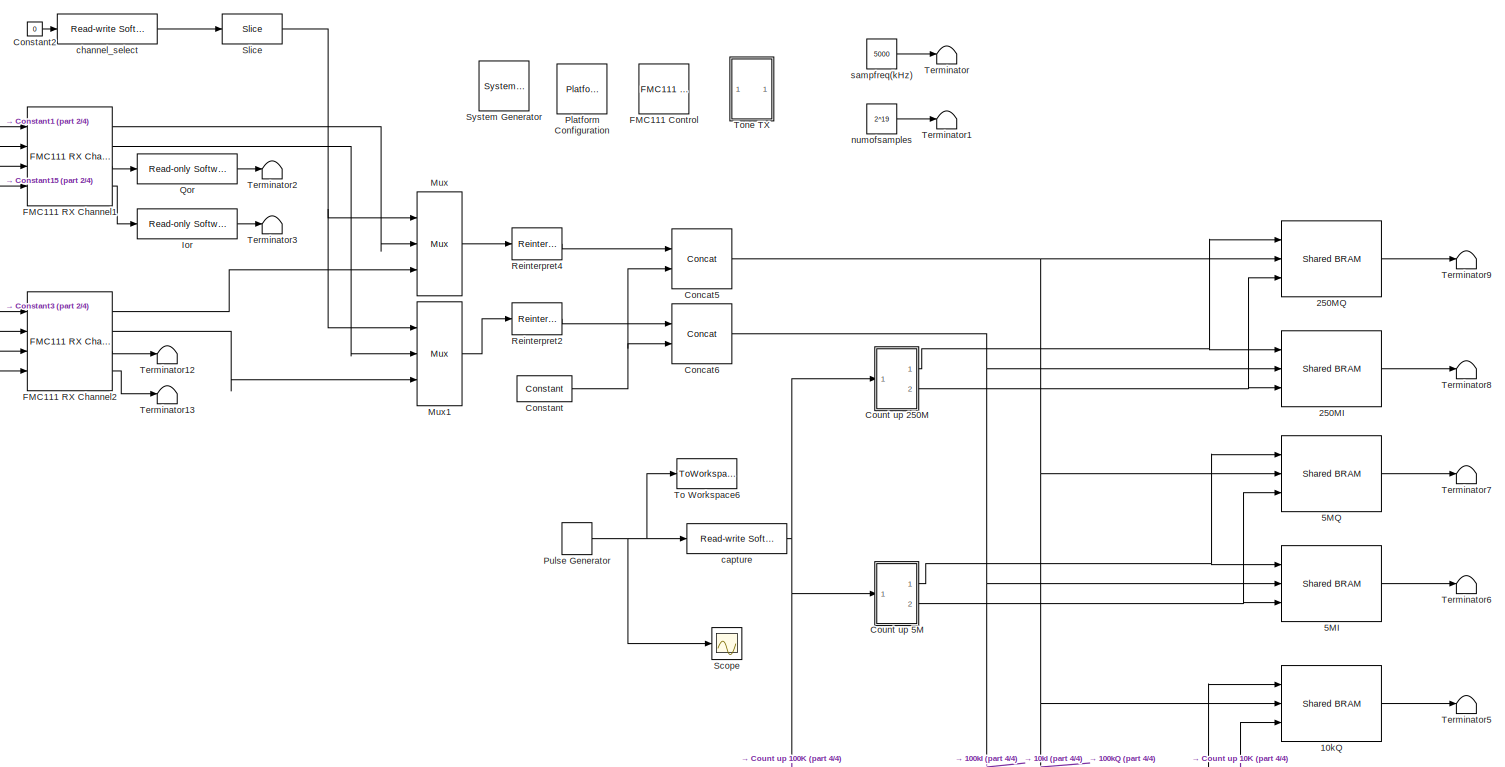
[diagram: root canvas - part 1/4, central region]
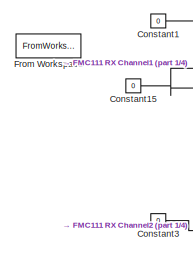
[diagram: root canvas - part 2/4, top left region]
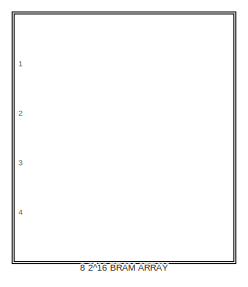
[diagram: root canvas - part 3/4, middle right region]
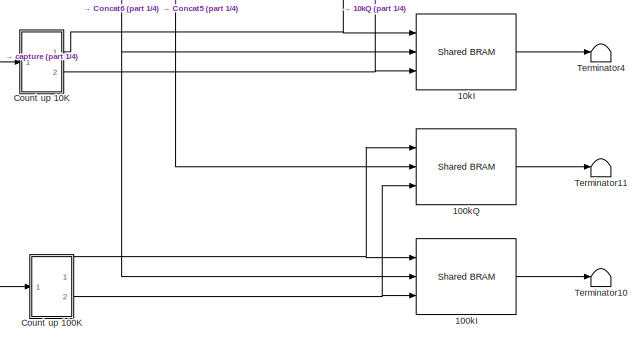
[diagram: root canvas - part 4/4, bottom center region]
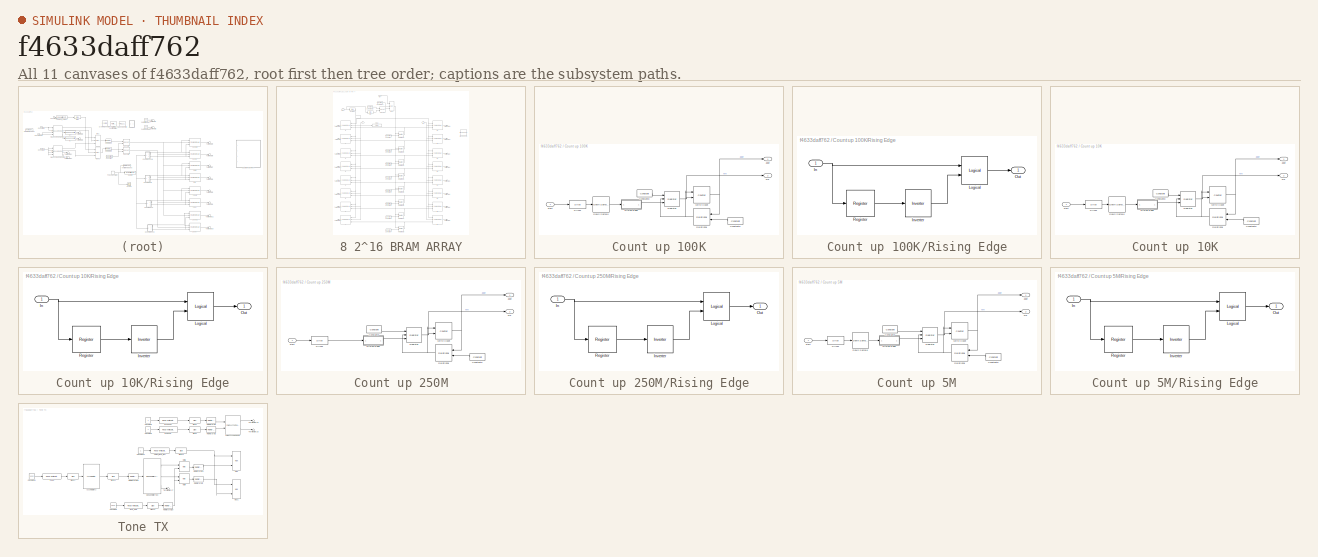
[diagram: thumbnail index - all 11 canvases of the model, root first then tree order]
MODEL slx_f4633daff762
KIND model
CONFIG PostLoadFcn = bps_model_init(gcs);
BLOCK [Reference]  Platform Configuration   REF=mbee4_library/ Platform
Configuration 
  Ports = []
  SourceBlock = mbee4_library/ Platform\nConfiguration
  SourceType = Platform Configuration
  Tag = xps:xsg,ver:4.5
  bp_choice = 'mBEE4'
  bp_option = base
  bp_override = off
  clk_rate = 250000000
  clk_src = fmc_clk1_fx: User defined clock based on FMC_HPC_CLK1
  enable_half_rate = off
  fpga_device = 'xc6vsx475t-2ff1759'
  fpga_type = xc6vsx475t
  hw_sys = mBEE4
  ref_clk_rate = 250000000
  sample_period = 1
  update = off
  xsg_ver = 14.7
BLOCK [Reference]  System Generator  REF=xbsIndex_r4/ System Generator
  AttributesFormatString = System\nGenerator
  Impl_file = ISE Defaults
  Ports = []
  SourceBlock = xbsIndex_r4/ System Generator
  SourceType = Xilinx System Generator Block
  Synth_file = XST Defaults
  Tag = genX
  UserDataPersistent = on
  block_type = sysgen
  clock_wrapper = Clock Enables
  core_generation = According to Block Masks
  dbl_ovrd = According to Block Masks
  dcm_input_clock_period = 10
  deprecated_control = off
  directory = ./radarDFT/sysgen
  eval_field = 0
  has_advanced_control = 0
  incr_netlist = off
  infoedit = System Generator
  package = ff1759
  part = xc6vsx475t
  proj_type = Project Navigator
  run_coregen = off
  sg_icon_stat = 50,50,0,0,token,white,0,58c5b5770fe5f7c311f53dbc6e73f0f6,right,,[ ],[ ]
  sg_mask_display = fprintf('','COMMENT: begin icon graphics');\npatch([0 50 50 0 0 ],[0 0 50 50 0 ],[1 1 1 ]);\npatch([1.6375 16.81 27.31 37.81 48.31 27.31 12.1375 1.6375 ],[36.655 36.655 47.155 36.655 47.155 47.155 47.155 36.655 ],[0.933333 0.203922 0.141176 ]);\npatch([12.1375 27.31 16.81 1.6375 12.1375 ],[26.155 26.155 36.655 36.655 26.155 ],[0.698039 0.0313725 0.219608 ]);\npatch([1.6375 16.81 27.31 12.1375 1.6375 ]...<+327ch>
  sggui_pos = 212,255,464,436
  simulink_period = 1
  speed = -2
  synthesis_tool = XST
  sysclk_period = 4
  testbench = off
  trim_vbits = Everywhere in SubSystem
  xilinxfamily = virtex6
BLOCK [Reference] 100kI  REF=xps_library/Shared BRAM  (lib defined in mdl_00b5cec29cd0, mdl_02ab6ecaa3d1, +5 more)
  Ports = [3, 1]
  SourceBlock = xps_library/Shared BRAM
  SourceType = Shared BRAM
  Tag = xps:bram
  addr_width = 16
  arith_type = Unsigned
  bin_pt = 0
  bitwidth = 32
  init_vals = 0
  sample_period = 1
  update = off
BLOCK [Reference] 100kQ  REF=xps_library/Shared BRAM  (lib defined in mdl_00b5cec29cd0, mdl_02ab6ecaa3d1, +5 more)
  Ports = [3, 1]
  SourceBlock = xps_library/Shared BRAM
  SourceType = Shared BRAM
  Tag = xps:bram
  addr_width = 16
  arith_type = Unsigned
  bin_pt = 0
  bitwidth = 32
  init_vals = 0
  sample_period = 1
  update = off
BLOCK [Reference] 10kI  REF=xps_library/Shared BRAM  (lib defined in mdl_00b5cec29cd0, mdl_02ab6ecaa3d1, +5 more)
  Ports = [3, 1]
  SourceBlock = xps_library/Shared BRAM
  SourceType = Shared BRAM
  Tag = xps:bram
  addr_width = 16
  arith_type = Unsigned
  bin_pt = 0
  bitwidth = 32
  init_vals = 0
  sample_period = 1
  update = off
BLOCK [Reference] 10kQ  REF=xps_library/Shared BRAM  (lib defined in mdl_00b5cec29cd0, mdl_02ab6ecaa3d1, +5 more)
  Ports = [3, 1]
  SourceBlock = xps_library/Shared BRAM
  SourceType = Shared BRAM
  Tag = xps:bram
  addr_width = 16
  arith_type = Unsigned
  bin_pt = 0
  bitwidth = 32
  init_vals = 0
  sample_period = 1
  update = off
BLOCK [Reference] 250MI  REF=xps_library/Shared BRAM  (lib defined in mdl_00b5cec29cd0, mdl_02ab6ecaa3d1, +5 more)
  Ports = [3, 1]
  SourceBlock = xps_library/Shared BRAM
  SourceType = Shared BRAM
  Tag = xps:bram
  addr_width = 16
  arith_type = Unsigned
  bin_pt = 0
  bitwidth = 32
  init_vals = 0
  sample_period = 1
  update = off
BLOCK [Reference] 250MQ  REF=xps_library/Shared BRAM  (lib defined in mdl_00b5cec29cd0, mdl_02ab6ecaa3d1, +5 more)
  Ports = [3, 1]
  SourceBlock = xps_library/Shared BRAM
  SourceType = Shared BRAM
  Tag = xps:bram
  addr_width = 16
  arith_type = Unsigned
  bin_pt = 0
  bitwidth = 32
  init_vals = 0
  sample_period = 1
  update = off
BLOCK [Reference] 5MI  REF=xps_library/Shared BRAM  (lib defined in mdl_00b5cec29cd0, mdl_02ab6ecaa3d1, +5 more)
  Ports = [3, 1]
  SourceBlock = xps_library/Shared BRAM
  SourceType = Shared BRAM
  Tag = xps:bram
  addr_width = 16
  arith_type = Unsigned
  bin_pt = 0
  bitwidth = 32
  init_vals = 0
  sample_period = 1
  update = off
BLOCK [Reference] 5MQ  REF=xps_library/Shared BRAM  (lib defined in mdl_00b5cec29cd0, mdl_02ab6ecaa3d1, +5 more)
  Ports = [3, 1]
  SourceBlock = xps_library/Shared BRAM
  SourceType = Shared BRAM
  Tag = xps:bram
  addr_width = 16
  arith_type = Unsigned
  bin_pt = 0
  bitwidth = 32
  init_vals = 0
  sample_period = 1
  update = off
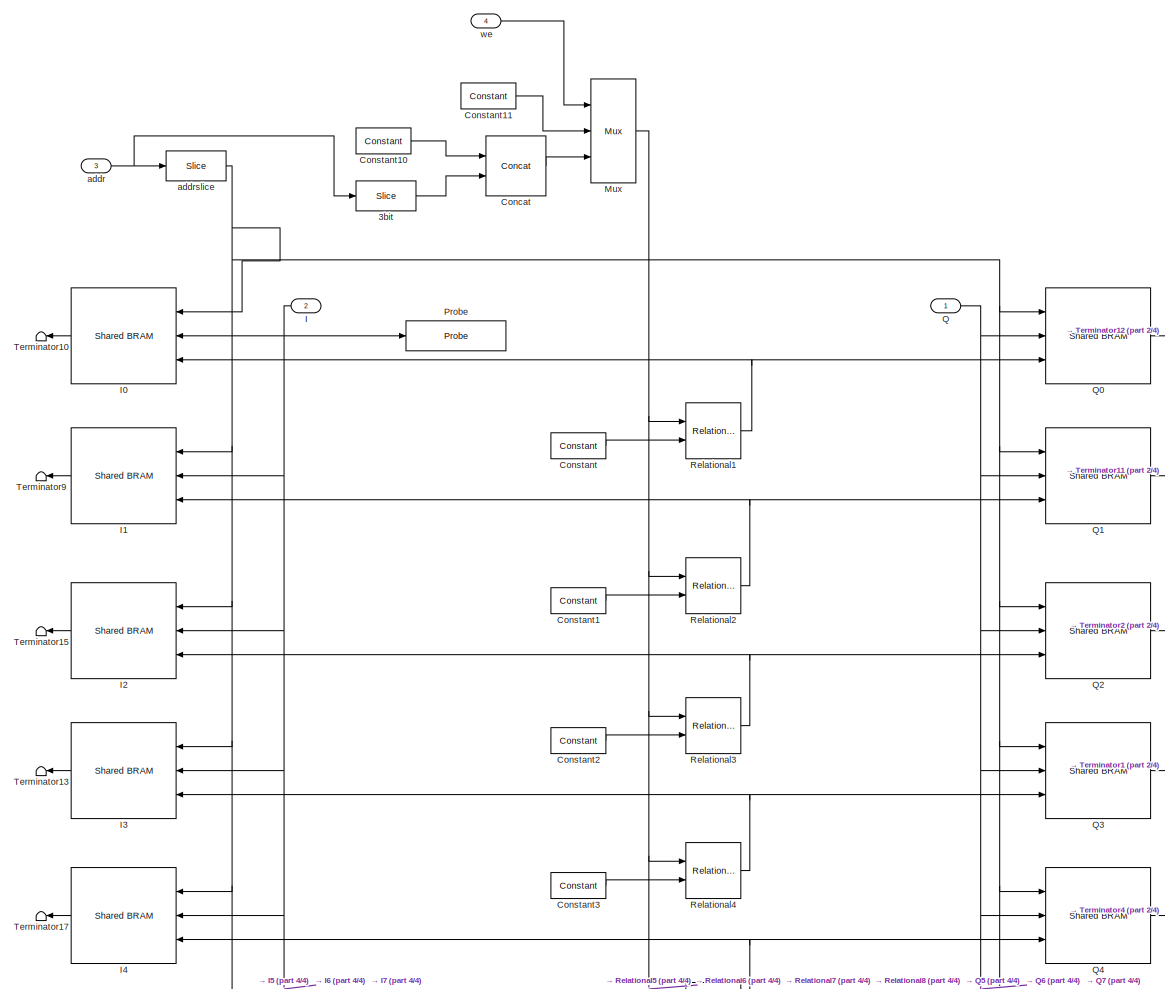
[diagram: 8 2^16 BRAM ARRAY - part 1/4, full width, middle band]
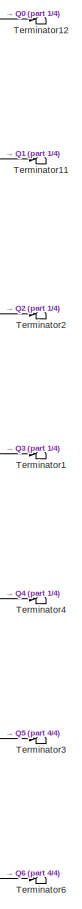
[diagram: 8 2^16 BRAM ARRAY - part 2/4, middle right region]
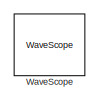
[diagram: 8 2^16 BRAM ARRAY - part 3/4, top right region]
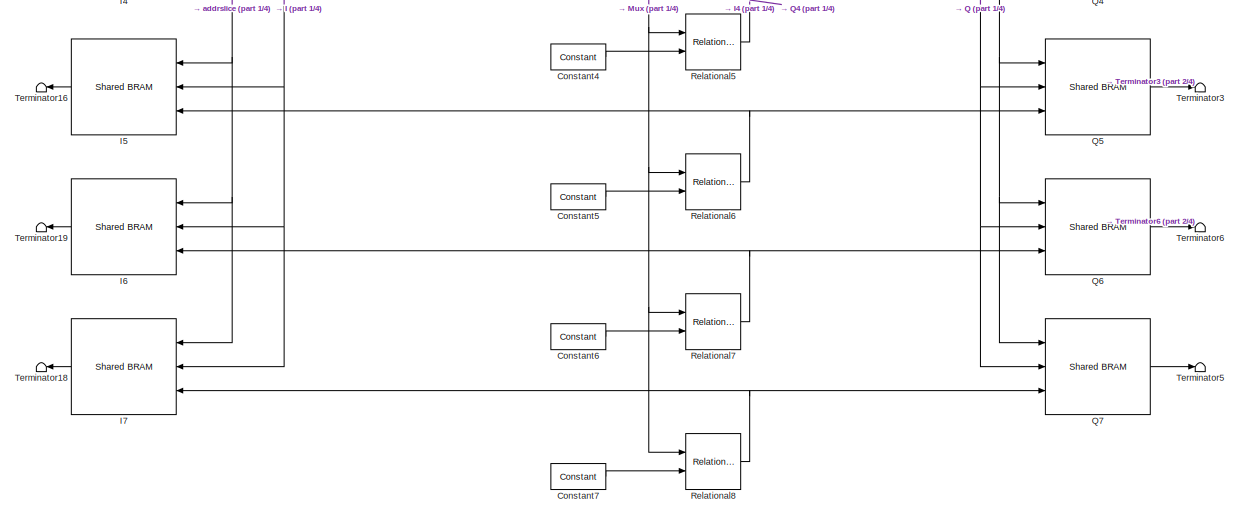
[diagram: 8 2^16 BRAM ARRAY - part 4/4, full width, bottom band]
BLOCK [SubSystem] 8 2^16 BRAM ARRAY
  Commented = on
  FunctionWithSeparateData = off
  MaskHideContents = off
  MinAlgLoopOccurrences = off
  Opaque = off
  Ports = [4]
  PropExecContextOutsideSubsystem = off
  RTWSystemCode = Auto
  RequestExecContextInheritance = off
BLOCK [Reference] 8 2^16 BRAM ARRAY/3bit  REF=xbsIndex_r4/Slice
  Ports = [1, 1]
  SourceBlock = xbsIndex_r4/Slice
  SourceType = Xilinx Bit Slice Extractor Block
  base0 = LSB of Input
  base1 = MSB of Input
  bit0 = 0
  bit1 = 0
  block_type = slice
  boolean_output = off
  dbl_ovrd = off
  has_advanced_control = 0
  infoedit = Extracts a given range of bits from each input sample and presents it at the output.  The output type is ordinarily unsigned with binary point at zero, but can be Boolean when the slice is one bit wide.<br><br>Hardware notes: In hardware this block costs nothing.  <repeated x9 — deduplicated; at blocks: 3bit, addrslice, Slice, Slice11, Slice12, Slice14, Slice17, Slice2, Slice3>
  mode = Upper Bit Location + Width
  nbits = 3
  sg_icon_stat = 60,30,1,1,white,blue,0,1fd851a7,right,,[ ],[ ]
  sg_mask_display = fprintf('','COMMENT: begin icon graphics');\npatch([0 60 60 0 0 ],[0 0 30 30 0 ],[0.77 0.82 0.91 ]);\nplot([0 60 60 0 0 ],[0 0 30 30 0 ]);\npatch([21.1 26.88 30.88 34.88 38.88 30.88 25.1 21.1 ],[19.44 19.44 23.44 19.44 23.44 23.44 23.44 19.44 ],[1 1 1 ]);\npatch([25.1 30.88 26.88 21.1 25.1 ],[15.44 15.44 19.44 19.44 15.44 ],[0.931 0.946 0.973 ]);\npatch([21.1 26.88 30.88 25.1 21.1 ],[11.44 11.44 15.44 ...<+304ch>  <repeated x13 — deduplicated; at blocks: 3bit, addrslice, Slice1, Slice, Slice11, Slice12, Slice14, Slice17, Slice2, Slice3>
  sggui_pos = 169,71,511,471
BLOCK [Reference] 8 2^16 BRAM ARRAY/Concat  REF=xbsIndex_r4/Concat
  Ports = [2, 1]
  SourceBlock = xbsIndex_r4/Concat
  SourceType = Xilinx Bus Concatenator Block
  block_type = concat
  dbl_ovrd = off
  has_advanced_control = 0
  infoedit = Concatenates two or more inputs.  Output will be cast to an unsigned value with the binary point at zero.
  num_inputs = 2
  sg_icon_stat = 60,60,2,1,white,blue,0,16398980,right,,[ ],[ ]
  sg_mask_display = fprintf('','COMMENT: begin icon graphics');\npatch([0 60 60 0 0 ],[0 0 60 60 0 ],[0.77 0.82 0.91 ]);\nplot([0 60 60 0 0 ],[0 0 60 60 0 ]);\npatch([12.2 23.76 31.76 39.76 47.76 31.76 20.2 12.2 ],[38.88 38.88 46.88 38.88 46.88 46.88 46.88 38.88 ],[1 1 1 ]);\npatch([20.2 31.76 23.76 12.2 20.2 ],[30.88 30.88 38.88 38.88 30.88 ],[0.931 0.946 0.973 ]);\npatch([12.2 23.76 31.76 20.2 12.2 ],[22.88 22.88 30.88 ...<+402ch>  <repeated x3 — deduplicated; at blocks: Concat, Concat5, Concat6>
  sggui_pos = 11,22,368,206
BLOCK [Reference] 8 2^16 BRAM ARRAY/Constant  REF=xbsIndex_r4/Constant
  Ports = [0, 1]
  SourceBlock = xbsIndex_r4/Constant
  SourceType = Xilinx Constant Block Block
  arith_type = Unsigned
  bin_pt = 0
  block_type = constant
  carry = CIN
  const = 0
  dbl_ovrd = off
  dsp48_infoedit = The use of this block for DSP48 instructions is deprecated.  Please use the Opmode block.
  equ = P=C
  exp_width = 8
  explicit_period = off
  frac_width = 24
  gui_display_data_type = Fixed-point
  has_advanced_control = 0
  inp1 = P
  inp2 = PCIN>>17
  n_bits = 4
  opr = +
  opselect = C
  period = 1
  preci_type = Single
  sg_icon_stat = 55,26,0,1,white,blue,0,bf4ddd8b,right,,[ ],[ ]
  sg_mask_display = fprintf('','COMMENT: begin icon graphics');\npatch([0 55 55 0 0 ],[0 0 26 26 0 ],[0.77 0.82 0.91 ]);\nplot([0 55 55 0 0 ],[0 0 26 26 0 ]);\npatch([20.325 24.66 27.66 30.66 33.66 27.66 23.325 20.325 ],[16.33 16.33 19.33 16.33 19.33 19.33 19.33 16.33 ],[1 1 1 ]);\npatch([23.325 27.66 24.66 20.325 23.325 ],[13.33 13.33 16.33 16.33 13.33 ],[0.931 0.946 0.973 ]);\npatch([20.325 24.66 27.66 23.325 20.325 ],[...<+323ch>  <repeated x14 — deduplicated; at blocks: Constant, Constant1, Constant10, Constant2, Constant3, Constant4, Constant5, Constant6, Constant7, Constant8>
  sggui_pos = 2,22,368,460
BLOCK [Reference] 8 2^16 BRAM ARRAY/Constant1  REF=xbsIndex_r4/Constant
  Ports = [0, 1]
  SourceBlock = xbsIndex_r4/Constant
  SourceType = Xilinx Constant Block Block
  arith_type = Unsigned
  bin_pt = 0
  block_type = constant
  carry = CIN
  const = 1
  dbl_ovrd = off
  dsp48_infoedit = The use of this block for DSP48 instructions is deprecated.  Please use the Opmode block.
  equ = P=C
  exp_width = 8
  explicit_period = off
  frac_width = 24
  gui_display_data_type = Fixed-point
  has_advanced_control = 0
  inp1 = P
  inp2 = PCIN>>17
  n_bits = 4
  opr = +
  opselect = C
  period = 1
  preci_type = Single
  sg_icon_stat = 55,26,0,1,white,blue,0,1c72b5be,right,,[ ],[ ]
  sggui_pos = 1869,151,368,460
BLOCK [Reference] 8 2^16 BRAM ARRAY/Constant10  REF=xbsIndex_r4/Constant
  Ports = [0, 1]
  SourceBlock = xbsIndex_r4/Constant
  SourceType = Xilinx Constant Block Block
  arith_type = Unsigned
  bin_pt = 0
  block_type = constant
  carry = CIN
  const = 0
  dbl_ovrd = off
  dsp48_infoedit = The use of this block for DSP48 instructions is deprecated.  Please use the Opmode block.
  equ = P=C
  exp_width = 8
  explicit_period = off
  frac_width = 24
  gui_display_data_type = Fixed-point
  has_advanced_control = 0
  inp1 = P
  inp2 = PCIN>>17
  n_bits = 3
  opr = +
  opselect = C
  period = 1
  preci_type = Single
  sg_icon_stat = 55,26,0,1,white,blue,0,bf4ddd8b,right,,[ ],[ ]
  sggui_pos = 11,22,368,460
BLOCK [Reference] 8 2^16 BRAM ARRAY/Constant11  REF=xbsIndex_r4/Constant
  Ports = [0, 1]
  SourceBlock = xbsIndex_r4/Constant
  SourceType = Xilinx Constant Block Block
  arith_type = Unsigned
  bin_pt = 0
  block_type = constant
  carry = CIN
  const = 15
  dbl_ovrd = off
  dsp48_infoedit = The use of this block for DSP48 instructions is deprecated.  Please use the Opmode block.
  equ = P=C
  exp_width = 8
  explicit_period = off
  frac_width = 24
  gui_display_data_type = Fixed-point
  has_advanced_control = 0
  inp1 = P
  inp2 = PCIN>>17
  n_bits = 4
  opr = +
  opselect = C
  period = 1
  preci_type = Single
  sg_icon_stat = 55,26,0,1,white,blue,0,1164c07c,right,,[ ],[ ]
  sg_mask_display = fprintf('','COMMENT: begin icon graphics');\npatch([0 55 55 0 0 ],[0 0 26 26 0 ],[0.77 0.82 0.91 ]);\nplot([0 55 55 0 0 ],[0 0 26 26 0 ]);\npatch([20.325 24.66 27.66 30.66 33.66 27.66 23.325 20.325 ],[16.33 16.33 19.33 16.33 19.33 19.33 19.33 16.33 ],[1 1 1 ]);\npatch([23.325 27.66 24.66 20.325 23.325 ],[13.33 13.33 16.33 16.33 13.33 ],[0.931 0.946 0.973 ]);\npatch([20.325 24.66 27.66 23.325 20.325 ],[...<+324ch>
  sggui_pos = 2,22,368,460
BLOCK [Reference] 8 2^16 BRAM ARRAY/Constant2  REF=xbsIndex_r4/Constant
  Ports = [0, 1]
  SourceBlock = xbsIndex_r4/Constant
  SourceType = Xilinx Constant Block Block
  arith_type = Unsigned
  bin_pt = 0
  block_type = constant
  carry = CIN
  const = 2
  dbl_ovrd = off
  dsp48_infoedit = The use of this block for DSP48 instructions is deprecated.  Please use the Opmode block.
  equ = P=C
  exp_width = 8
  explicit_period = off
  frac_width = 24
  gui_display_data_type = Fixed-point
  has_advanced_control = 0
  inp1 = P
  inp2 = PCIN>>17
  n_bits = 4
  opr = +
  opselect = C
  period = 1
  preci_type = Single
  sg_icon_stat = 55,26,0,1,white,blue,0,fca86624,right,,[ ],[ ]
  sggui_pos = 1748,183,368,460
BLOCK [Reference] 8 2^16 BRAM ARRAY/Constant3  REF=xbsIndex_r4/Constant
  Ports = [0, 1]
  SourceBlock = xbsIndex_r4/Constant
  SourceType = Xilinx Constant Block Block
  arith_type = Unsigned
  bin_pt = 0
  block_type = constant
  carry = CIN
  const = 3
  dbl_ovrd = off
  dsp48_infoedit = The use of this block for DSP48 instructions is deprecated.  Please use the Opmode block.
  equ = P=C
  exp_width = 8
  explicit_period = off
  frac_width = 24
  gui_display_data_type = Fixed-point
  has_advanced_control = 0
  inp1 = P
  inp2 = PCIN>>17
  n_bits = 4
  opr = +
  opselect = C
  period = 1
  preci_type = Single
  sg_icon_stat = 55,26,0,1,white,blue,0,279a71c8,right,,[ ],[ ]
  sggui_pos = -9,22,368,460
BLOCK [Reference] 8 2^16 BRAM ARRAY/Constant4  REF=xbsIndex_r4/Constant
  Ports = [0, 1]
  SourceBlock = xbsIndex_r4/Constant
  SourceType = Xilinx Constant Block Block
  arith_type = Unsigned
  bin_pt = 0
  block_type = constant
  carry = CIN
  const = 4
  dbl_ovrd = off
  dsp48_infoedit = The use of this block for DSP48 instructions is deprecated.  Please use the Opmode block.
  equ = P=C
  exp_width = 8
  explicit_period = off
  frac_width = 24
  gui_display_data_type = Fixed-point
  has_advanced_control = 0
  inp1 = P
  inp2 = PCIN>>17
  n_bits = 4
  opr = +
  opselect = C
  period = 1
  preci_type = Single
  sg_icon_stat = 55,26,0,1,white,blue,0,85f36853,right,,[ ],[ ]
  sggui_pos = -7,22,368,460
BLOCK [Reference] 8 2^16 BRAM ARRAY/Constant5  REF=xbsIndex_r4/Constant
  Ports = [0, 1]
  SourceBlock = xbsIndex_r4/Constant
  SourceType = Xilinx Constant Block Block
  arith_type = Unsigned
  bin_pt = 0
  block_type = constant
  carry = CIN
  const = 5
  dbl_ovrd = off
  dsp48_infoedit = The use of this block for DSP48 instructions is deprecated.  Please use the Opmode block.
  equ = P=C
  exp_width = 8
  explicit_period = off
  frac_width = 24
  gui_display_data_type = Fixed-point
  has_advanced_control = 0
  inp1 = P
  inp2 = PCIN>>17
  n_bits = 4
  opr = +
  opselect = C
  period = 1
  preci_type = Single
  sg_icon_stat = 55,26,0,1,white,blue,0,98872051,right,,[ ],[ ]
  sggui_pos = -9,22,368,460
BLOCK [Reference] 8 2^16 BRAM ARRAY/Constant6  REF=xbsIndex_r4/Constant
  Ports = [0, 1]
  SourceBlock = xbsIndex_r4/Constant
  SourceType = Xilinx Constant Block Block
  arith_type = Unsigned
  bin_pt = 0
  block_type = constant
  carry = CIN
  const = 6
  dbl_ovrd = off
  dsp48_infoedit = The use of this block for DSP48 instructions is deprecated.  Please use the Opmode block.
  equ = P=C
  exp_width = 8
  explicit_period = off
  frac_width = 24
  gui_display_data_type = Fixed-point
  has_advanced_control = 0
  inp1 = P
  inp2 = PCIN>>17
  n_bits = 4
  opr = +
  opselect = C
  period = 1
  preci_type = Single
  sg_icon_stat = 55,26,0,1,white,blue,0,f0403ad7,right,,[ ],[ ]
  sggui_pos = -9,22,368,460
BLOCK [Reference] 8 2^16 BRAM ARRAY/Constant7  REF=xbsIndex_r4/Constant
  Ports = [0, 1]
  SourceBlock = xbsIndex_r4/Constant
  SourceType = Xilinx Constant Block Block
  arith_type = Unsigned
  bin_pt = 0
  block_type = constant
  carry = CIN
  const = 7
  dbl_ovrd = off
  dsp48_infoedit = The use of this block for DSP48 instructions is deprecated.  Please use the Opmode block.
  equ = P=C
  exp_width = 8
  explicit_period = off
  frac_width = 24
  gui_display_data_type = Fixed-point
  has_advanced_control = 0
  inp1 = P
  inp2 = PCIN>>17
  n_bits = 4
  opr = +
  opselect = C
  period = 1
  preci_type = Single
  sg_icon_stat = 55,26,0,1,white,blue,0,2a6960a5,right,,[ ],[ ]
  sggui_pos = -9,22,368,460
BLOCK [Inport] 8 2^16 BRAM ARRAY/I
  IconDisplay = Port number
  Port = 2
BLOCK [Reference] 8 2^16 BRAM ARRAY/I0  REF=xps_library/Shared BRAM  (lib defined in mdl_00b5cec29cd0, mdl_02ab6ecaa3d1, +5 more)
  Ports = [3, 1]
  SourceBlock = xps_library/Shared BRAM
  SourceType = Shared BRAM
  Tag = xps:bram
  addr_width = 16
  arith_type = Unsigned
  bin_pt = 0
  bitwidth = 32
  init_vals = 0
  sample_period = 1
  update = off
BLOCK [Reference] 8 2^16 BRAM ARRAY/I1  REF=xps_library/Shared BRAM  (lib defined in mdl_00b5cec29cd0, mdl_02ab6ecaa3d1, +5 more)
  Ports = [3, 1]
  SourceBlock = xps_library/Shared BRAM
  SourceType = Shared BRAM
  Tag = xps:bram
  addr_width = 16
  arith_type = Unsigned
  bin_pt = 0
  bitwidth = 32
  init_vals = 0
  sample_period = 1
  update = off
BLOCK [Reference] 8 2^16 BRAM ARRAY/I2  REF=xps_library/Shared BRAM  (lib defined in mdl_00b5cec29cd0, mdl_02ab6ecaa3d1, +5 more)
  Ports = [3, 1]
  SourceBlock = xps_library/Shared BRAM
  SourceType = Shared BRAM
  Tag = xps:bram
  addr_width = 16
  arith_type = Unsigned
  bin_pt = 0
  bitwidth = 32
  init_vals = 0
  sample_period = 1
  update = off
BLOCK [Reference] 8 2^16 BRAM ARRAY/I3  REF=xps_library/Shared BRAM  (lib defined in mdl_00b5cec29cd0, mdl_02ab6ecaa3d1, +5 more)
  Ports = [3, 1]
  SourceBlock = xps_library/Shared BRAM
  SourceType = Shared BRAM
  Tag = xps:bram
  addr_width = 16
  arith_type = Unsigned
  bin_pt = 0
  bitwidth = 32
  init_vals = 0
  sample_period = 1
  update = off
BLOCK [Reference] 8 2^16 BRAM ARRAY/I4  REF=xps_library/Shared BRAM  (lib defined in mdl_00b5cec29cd0, mdl_02ab6ecaa3d1, +5 more)
  Ports = [3, 1]
  SourceBlock = xps_library/Shared BRAM
  SourceType = Shared BRAM
  Tag = xps:bram
  addr_width = 16
  arith_type = Unsigned
  bin_pt = 0
  bitwidth = 32
  init_vals = 0
  sample_period = 1
  update = off
BLOCK [Reference] 8 2^16 BRAM ARRAY/I5  REF=xps_library/Shared BRAM  (lib defined in mdl_00b5cec29cd0, mdl_02ab6ecaa3d1, +5 more)
  Ports = [3, 1]
  SourceBlock = xps_library/Shared BRAM
  SourceType = Shared BRAM
  Tag = xps:bram
  addr_width = 16
  arith_type = Unsigned
  bin_pt = 0
  bitwidth = 32
  init_vals = 0
  sample_period = 1
  update = off
BLOCK [Reference] 8 2^16 BRAM ARRAY/I6  REF=xps_library/Shared BRAM  (lib defined in mdl_00b5cec29cd0, mdl_02ab6ecaa3d1, +5 more)
  Ports = [3, 1]
  SourceBlock = xps_library/Shared BRAM
  SourceType = Shared BRAM
  Tag = xps:bram
  addr_width = 16
  arith_type = Unsigned
  bin_pt = 0
  bitwidth = 32
  init_vals = 0
  sample_period = 1
  update = off
BLOCK [Reference] 8 2^16 BRAM ARRAY/I7  REF=xps_library/Shared BRAM  (lib defined in mdl_00b5cec29cd0, mdl_02ab6ecaa3d1, +5 more)
  Ports = [3, 1]
  SourceBlock = xps_library/Shared BRAM
  SourceType = Shared BRAM
  Tag = xps:bram
  addr_width = 16
  arith_type = Unsigned
  bin_pt = 0
  bitwidth = 32
  init_vals = 0
  sample_period = 1
  update = off
BLOCK [Reference] 8 2^16 BRAM ARRAY/Mux  REF=xbsIndex_r4/Mux
  Ports = [3, 1]
  SourceBlock = xbsIndex_r4/Mux
  SourceType = Xilinx Bus Multiplexer Block
  arith_type = Unsigned
  bin_pt = 0
  block_type = mux
  dbl_ovrd = off
  en = off
  has_advanced_control = 0
  inputs = 2
  latency = 0
  n_bits = 4
  overflow = Wrap
  precision = User Defined
  quantization = Truncate
  sg_icon_stat = 45,104,3,1,white,blue,3,eb98d690,right,,[ ],[ ]
  sg_mask_display = fprintf('','COMMENT: begin icon graphics');\npatch([0 45 45 0 0 ],[0 14.8571 89.1429 104 0 ],[0.77 0.82 0.91 ]);\nplot([0 45 45 0 0 ],[0 14.8571 89.1429 104 0 ]);\npatch([8.65 17.32 23.32 29.32 35.32 23.32 14.65 8.65 ],[58.66 58.66 64.66 58.66 64.66 64.66 64.66 58.66 ],[1 1 1 ]);\npatch([14.65 23.32 17.32 8.65 14.65 ],[52.66 52.66 58.66 58.66 52.66 ],[0.931 0.946 0.973 ]);\npatch([8.65 17.32 23.32 14.6...<+466ch>  <repeated x5 — deduplicated; at blocks: Mux, Mux1>
  sggui_pos = 11,22,369,356
  xl_area = [0,0,0,0,0,0,0]
  xl_use_area = off
BLOCK [Reference] 8 2^16 BRAM ARRAY/Probe  REF=xps_library/Probe  (lib defined in mdl_00b5cec29cd0, mdl_02ab6ecaa3d1, +5 more)
  Ports = [1]
  SourceBlock = xps_library/Probe
  SourceType = Probe
  Tag = xps:chipscope_probe
  arith_type = Signed  (2's comp)
  bin_pt = 0
  bitwidth = 32
  match_type = basic
  match_units = 1
  sample_period = NaN
  update = on
BLOCK [Inport] 8 2^16 BRAM ARRAY/Q
  IconDisplay = Port number
BLOCK [Reference] 8 2^16 BRAM ARRAY/Q0  REF=xps_library/Shared BRAM  (lib defined in mdl_00b5cec29cd0, mdl_02ab6ecaa3d1, +5 more)
  Ports = [3, 1]
  SourceBlock = xps_library/Shared BRAM
  SourceType = Shared BRAM
  Tag = xps:bram
  addr_width = 16
  arith_type = Unsigned
  bin_pt = 0
  bitwidth = 32
  init_vals = 0
  sample_period = 1
  update = off
BLOCK [Reference] 8 2^16 BRAM ARRAY/Q1  REF=xps_library/Shared BRAM  (lib defined in mdl_00b5cec29cd0, mdl_02ab6ecaa3d1, +5 more)
  Ports = [3, 1]
  SourceBlock = xps_library/Shared BRAM
  SourceType = Shared BRAM
  Tag = xps:bram
  addr_width = 16
  arith_type = Unsigned
  bin_pt = 0
  bitwidth = 32
  init_vals = 0
  sample_period = 1
  update = off
BLOCK [Reference] 8 2^16 BRAM ARRAY/Q2  REF=xps_library/Shared BRAM  (lib defined in mdl_00b5cec29cd0, mdl_02ab6ecaa3d1, +5 more)
  Ports = [3, 1]
  SourceBlock = xps_library/Shared BRAM
  SourceType = Shared BRAM
  Tag = xps:bram
  addr_width = 16
  arith_type = Unsigned
  bin_pt = 0
  bitwidth = 32
  init_vals = 0
  sample_period = 1
  update = off
BLOCK [Reference] 8 2^16 BRAM ARRAY/Q3  REF=xps_library/Shared BRAM  (lib defined in mdl_00b5cec29cd0, mdl_02ab6ecaa3d1, +5 more)
  Ports = [3, 1]
  SourceBlock = xps_library/Shared BRAM
  SourceType = Shared BRAM
  Tag = xps:bram
  addr_width = 16
  arith_type = Unsigned
  bin_pt = 0
  bitwidth = 32
  init_vals = 0
  sample_period = 1
  update = off
BLOCK [Reference] 8 2^16 BRAM ARRAY/Q4  REF=xps_library/Shared BRAM  (lib defined in mdl_00b5cec29cd0, mdl_02ab6ecaa3d1, +5 more)
  Ports = [3, 1]
  SourceBlock = xps_library/Shared BRAM
  SourceType = Shared BRAM
  Tag = xps:bram
  addr_width = 16
  arith_type = Unsigned
  bin_pt = 0
  bitwidth = 32
  init_vals = 0
  sample_period = 1
  update = off
BLOCK [Reference] 8 2^16 BRAM ARRAY/Q5  REF=xps_library/Shared BRAM  (lib defined in mdl_00b5cec29cd0, mdl_02ab6ecaa3d1, +5 more)
  Ports = [3, 1]
  SourceBlock = xps_library/Shared BRAM
  SourceType = Shared BRAM
  Tag = xps:bram
  addr_width = 16
  arith_type = Unsigned
  bin_pt = 0
  bitwidth = 32
  init_vals = 0
  sample_period = 1
  update = off
BLOCK [Reference] 8 2^16 BRAM ARRAY/Q6  REF=xps_library/Shared BRAM  (lib defined in mdl_00b5cec29cd0, mdl_02ab6ecaa3d1, +5 more)
  Ports = [3, 1]
  SourceBlock = xps_library/Shared BRAM
  SourceType = Shared BRAM
  Tag = xps:bram
  addr_width = 16
  arith_type = Unsigned
  bin_pt = 0
  bitwidth = 32
  init_vals = 0
  sample_period = 1
  update = off
BLOCK [Reference] 8 2^16 BRAM ARRAY/Q7  REF=xps_library/Shared BRAM  (lib defined in mdl_00b5cec29cd0, mdl_02ab6ecaa3d1, +5 more)
  Ports = [3, 1]
  SourceBlock = xps_library/Shared BRAM
  SourceType = Shared BRAM
  Tag = xps:bram
  addr_width = 16
  arith_type = Unsigned
  bin_pt = 0
  bitwidth = 32
  init_vals = 0
  sample_period = 1
  update = off
BLOCK [Reference] 8 2^16 BRAM ARRAY/Relational1  REF=xbsIndex_r4/Relational
  Ports = [2, 1]
  SourceBlock = xbsIndex_r4/Relational
  SourceType = Xilinx Arithmetic Relational Operator Block
  block_type = relational
  dbl_ovrd = off
  en = off
  has_advanced_control = 0
  latency = 0
  mode = a=b
  sg_icon_stat = 55,56,2,1,white,blue,0,2a81ff49,right,,[ ],[ ]
  sg_mask_display = fprintf('','COMMENT: begin icon graphics');\npatch([0 55 55 0 0 ],[0 0 56 56 0 ],[0.77 0.82 0.91 ]);\nplot([0 55 55 0 0 ],[0 0 56 56 0 ]);\npatch([11.425 21.54 28.54 35.54 42.54 28.54 18.425 11.425 ],[35.77 35.77 42.77 35.77 42.77 42.77 42.77 35.77 ],[1 1 1 ]);\npatch([18.425 28.54 21.54 11.425 18.425 ],[28.77 28.77 35.77 35.77 28.77 ],[0.931 0.946 0.973 ]);\npatch([11.425 21.54 28.54 18.425 11.425 ],[...<+459ch>  <repeated x8 — deduplicated; at blocks: Relational1, Relational2, Relational3, Relational4, Relational5, Relational6, Relational7, Relational8>
  sggui_pos = -1,-1,-1,-1
  xl_area = [0,0,0,0,0,0,0]
  xl_use_area = off
BLOCK [Reference] 8 2^16 BRAM ARRAY/Relational2  REF=xbsIndex_r4/Relational
  Ports = [2, 1]
  SourceBlock = xbsIndex_r4/Relational
  SourceType = Xilinx Arithmetic Relational Operator Block
  block_type = relational
  dbl_ovrd = off
  en = off
  has_advanced_control = 0
  latency = 0
  mode = a=b
  sg_icon_stat = 55,56,2,1,white,blue,0,2a81ff49,right,,[ ],[ ]
  sggui_pos = -1,-1,-1,-1
  xl_area = [0,0,0,0,0,0,0]
  xl_use_area = off
BLOCK [Reference] 8 2^16 BRAM ARRAY/Relational3  REF=xbsIndex_r4/Relational
  Ports = [2, 1]
  SourceBlock = xbsIndex_r4/Relational
  SourceType = Xilinx Arithmetic Relational Operator Block
  block_type = relational
  dbl_ovrd = off
  en = off
  has_advanced_control = 0
  latency = 0
  mode = a=b
  sg_icon_stat = 55,56,2,1,white,blue,0,2a81ff49,right,,[ ],[ ]
  sggui_pos = -1,-1,-1,-1
  xl_area = [0,0,0,0,0,0,0]
  xl_use_area = off
BLOCK [Reference] 8 2^16 BRAM ARRAY/Relational4  REF=xbsIndex_r4/Relational
  Ports = [2, 1]
  SourceBlock = xbsIndex_r4/Relational
  SourceType = Xilinx Arithmetic Relational Operator Block
  block_type = relational
  dbl_ovrd = off
  en = off
  has_advanced_control = 0
  latency = 0
  mode = a=b
  sg_icon_stat = 55,56,2,1,white,blue,0,2a81ff49,right,,[ ],[ ]
  sggui_pos = -1,-1,-1,-1
  xl_area = [0,0,0,0,0,0,0]
  xl_use_area = off
BLOCK [Reference] 8 2^16 BRAM ARRAY/Relational5  REF=xbsIndex_r4/Relational
  Ports = [2, 1]
  SourceBlock = xbsIndex_r4/Relational
  SourceType = Xilinx Arithmetic Relational Operator Block
  block_type = relational
  dbl_ovrd = off
  en = off
  has_advanced_control = 0
  latency = 0
  mode = a=b
  sg_icon_stat = 55,56,2,1,white,blue,0,2a81ff49,right,,[ ],[ ]
  sggui_pos = -1,-1,-1,-1
  xl_area = [0,0,0,0,0,0,0]
  xl_use_area = off
BLOCK [Reference] 8 2^16 BRAM ARRAY/Relational6  REF=xbsIndex_r4/Relational
  Ports = [2, 1]
  SourceBlock = xbsIndex_r4/Relational
  SourceType = Xilinx Arithmetic Relational Operator Block
  block_type = relational
  dbl_ovrd = off
  en = off
  has_advanced_control = 0
  latency = 0
  mode = a=b
  sg_icon_stat = 55,56,2,1,white,blue,0,2a81ff49,right,,[ ],[ ]
  sggui_pos = -1,-1,-1,-1
  xl_area = [0,0,0,0,0,0,0]
  xl_use_area = off
BLOCK [Reference] 8 2^16 BRAM ARRAY/Relational7  REF=xbsIndex_r4/Relational
  Ports = [2, 1]
  SourceBlock = xbsIndex_r4/Relational
  SourceType = Xilinx Arithmetic Relational Operator Block
  block_type = relational
  dbl_ovrd = off
  en = off
  has_advanced_control = 0
  latency = 0
  mode = a=b
  sg_icon_stat = 55,56,2,1,white,blue,0,2a81ff49,right,,[ ],[ ]
  sggui_pos = -1,-1,-1,-1
  xl_area = [0,0,0,0,0,0,0]
  xl_use_area = off
BLOCK [Reference] 8 2^16 BRAM ARRAY/Relational8  REF=xbsIndex_r4/Relational
  Ports = [2, 1]
  SourceBlock = xbsIndex_r4/Relational
  SourceType = Xilinx Arithmetic Relational Operator Block
  block_type = relational
  dbl_ovrd = off
  en = off
  has_advanced_control = 0
  latency = 0
  mode = a=b
  sg_icon_stat = 55,56,2,1,white,blue,0,2a81ff49,right,,[ ],[ ]
  sggui_pos = -1,-1,-1,-1
  xl_area = [0,0,0,0,0,0,0]
  xl_use_area = off
BLOCK [Terminator] 8 2^16 BRAM ARRAY/Terminator1
BLOCK [Terminator] 8 2^16 BRAM ARRAY/Terminator10
BLOCK [Terminator] 8 2^16 BRAM ARRAY/Terminator11
BLOCK [Terminator] 8 2^16 BRAM ARRAY/Terminator12
BLOCK [Terminator] 8 2^16 BRAM ARRAY/Terminator13
BLOCK [Terminator] 8 2^16 BRAM ARRAY/Terminator15
BLOCK [Terminator] 8 2^16 BRAM ARRAY/Terminator16
BLOCK [Terminator] 8 2^16 BRAM ARRAY/Terminator17
BLOCK [Terminator] 8 2^16 BRAM ARRAY/Terminator18
BLOCK [Terminator] 8 2^16 BRAM ARRAY/Terminator19
BLOCK [Terminator] 8 2^16 BRAM ARRAY/Terminator2
BLOCK [Terminator] 8 2^16 BRAM ARRAY/Terminator3
BLOCK [Terminator] 8 2^16 BRAM ARRAY/Terminator4
BLOCK [Terminator] 8 2^16 BRAM ARRAY/Terminator5
BLOCK [Terminator] 8 2^16 BRAM ARRAY/Terminator6
BLOCK [Terminator] 8 2^16 BRAM ARRAY/Terminator9
BLOCK [Reference] 8 2^16 BRAM ARRAY/WaveScope  REF=xbsIndex_r4/WaveScope
  Commented = on
  Ports = []
  SourceBlock = xbsIndex_r4/WaveScope
  SourceType = Xilinx WaveScope Block
  UserDataPersistent = on
  block_type = wavescope
  has_advanced_control = 0
  infoedit = WaveScope
  sg_icon_stat = 71,62,-1,-1,blue,white,0,07734,right,,[ ],[ ]
  sg_mask_display = fprintf('','COMMENT: begin icon graphics');\npatch([0 71 71 0 0 ],[0 0 62 62 0 ],[1 1 1 ]);\nplot([0 71 71 0 0 ],[0 0 62 62 0 ]);\npatch([17.2 28.76 36.76 44.76 52.76 36.76 25.2 17.2 ],[39.88 39.88 47.88 39.88 47.88 47.88 47.88 39.88 ],[0.839 0.874 0.937 ]);\npatch([25.2 36.76 28.76 17.2 25.2 ],[31.88 31.88 39.88 39.88 31.88 ],[0.77 0.82 0.91 ]);\npatch([17.2 28.76 36.76 25.2 17.2 ],[23.88 23.88 31.88 ...<+536ch>
  sggui_pos = -1,-1,-1,-1
BLOCK [Inport] 8 2^16 BRAM ARRAY/addr
  IconDisplay = Port number
  Port = 3
BLOCK [Reference] 8 2^16 BRAM ARRAY/addrslice  REF=xbsIndex_r4/Slice
  Ports = [1, 1]
  SourceBlock = xbsIndex_r4/Slice
  SourceType = Xilinx Bit Slice Extractor Block
  base0 = LSB of Input
  base1 = MSB of Input
  bit0 = 0
  bit1 = 0
  block_type = slice
  boolean_output = off
  dbl_ovrd = off
  has_advanced_control = 0
  mode = Lower Bit Location + Width
  nbits = 16
  sg_icon_stat = 60,30,1,1,white,blue,0,1fd851a7,right,,[ ],[ ]
  sggui_pos = 151,55,511,471
BLOCK [Inport] 8 2^16 BRAM ARRAY/we
  IconDisplay = Port number
  Port = 4
BLOCK [Reference] Concat5  REF=xbsIndex_r4/Concat
  Ports = [2, 1]
  SourceBlock = xbsIndex_r4/Concat
  SourceType = Xilinx Bus Concatenator Block
  block_type = concat
  dbl_ovrd = off
  has_advanced_control = 0
  infoedit = Concatenates two or more inputs.  Output will be cast to an unsigned value with the binary point at zero.
  num_inputs = 2
  sg_icon_stat = 60,60,2,1,white,blue,0,16398980,right,,[ ],[ ]
  sggui_pos = -9,176,368,206
BLOCK [Reference] Concat6  REF=xbsIndex_r4/Concat
  Ports = [2, 1]
  SourceBlock = xbsIndex_r4/Concat
  SourceType = Xilinx Bus Concatenator Block
  block_type = concat
  dbl_ovrd = off
  has_advanced_control = 0
  infoedit = Concatenates two or more inputs.  Output will be cast to an unsigned value with the binary point at zero.
  num_inputs = 2
  sg_icon_stat = 60,60,2,1,white,blue,0,16398980,right,,[ ],[ ]
  sggui_pos = 2,184,368,206
BLOCK [Reference] Constant  REF=xbsIndex_r4/Constant
  Ports = [0, 1]
  SourceBlock = xbsIndex_r4/Constant
  SourceType = Xilinx Constant Block Block
  arith_type = Unsigned
  bin_pt = 0
  block_type = constant
  carry = CIN
  const = 0
  dbl_ovrd = off
  dsp48_infoedit = The use of this block for DSP48 instructions is deprecated.  Please use the Opmode block.
  equ = P=C
  exp_width = 8
  explicit_period = off
  frac_width = 24
  gui_display_data_type = Fixed-point
  has_advanced_control = 0
  inp1 = P
  inp2 = PCIN>>17
  n_bits = 18
  opr = +
  opselect = C
  period = 1
  preci_type = Single
  sg_icon_stat = 55,26,0,1,white,blue,0,bf4ddd8b,right,,[ ],[ ]
  sggui_pos = -7,22,368,460
BLOCK [Constant] Constant1
  SampleTime = 1
  Value = 0
BLOCK [Constant] Constant15
  SampleTime = 1
  Value = 0
BLOCK [Constant] Constant2
  SampleTime = 1
  Value = 0
BLOCK [Constant] Constant3
  SampleTime = 1
  Value = 0
BLOCK [SubSystem] Count up 100K
  FunctionWithSeparateData = off
  MaskHideContents = off
  MinAlgLoopOccurrences = off
  Opaque = off
  Ports = [1, 2]
  PropExecContextOutsideSubsystem = off
  RTWSystemCode = Auto
  RequestExecContextInheritance = off
BLOCK [Reference] Count up 100K/Constant8  REF=xbsIndex_r4/Constant
  Ports = [0, 1]
  SourceBlock = xbsIndex_r4/Constant
  SourceType = Xilinx Constant Block Block
  arith_type = Boolean
  bin_pt = 0
  block_type = constant
  block_version = 10.1.3
  carry = CIN
  const = 1
  dbl_ovrd = off
  dsp48_infoedit = The use of this block for DSP48 instructions is deprecated.  Please use the Opmode block.
  equ = P=C
  exp_width = 8
  explicit_period = off
  frac_width = 24
  gui_display_data_type = Boolean
  has_advanced_control = 0
  inp1 = P
  inp2 = PCIN>>17
  n_bits = 1
  opr = +
  opselect = C
  period = 1
  preci_type = Single
  sg_icon_stat = 55,26,0,1,white,blue,0,1c72b5be,right,,[ ],[ ]
  sggui_pos = 2,22,400,460
BLOCK [Reference] Count up 100K/Constant9  REF=xbsIndex_r4/Constant
  Ports = [0, 1]
  SourceBlock = xbsIndex_r4/Constant
  SourceType = Xilinx Constant Block Block
  arith_type = Unsigned
  bin_pt = 0
  block_type = constant
  block_version = 10.1.3
  carry = CIN
  const = 2^16-2
  dbl_ovrd = off
  dsp48_infoedit = The use of this block for DSP48 instructions is deprecated.  Please use the Opmode block.
  equ = P=C
  exp_width = 8
  explicit_period = off
  frac_width = 24
  gui_display_data_type = Fixed-point
  has_advanced_control = 0
  inp1 = P
  inp2 = PCIN>>17
  n_bits = 16
  opr = +
  opselect = C
  period = 1e-8
  preci_type = Single
  sg_icon_stat = 55,26,0,1,white,blue,0,183e8a55,left,,[ ],[ ]
  sg_mask_display = fprintf('','COMMENT: begin icon graphics');\npatch([0 55 55 0 0 ],[0 0 26 26 0 ],[0.77 0.82 0.91 ]);\nplot([0 55 55 0 0 ],[0 0 26 26 0 ]);\npatch([20.325 24.66 27.66 30.66 33.66 27.66 23.325 20.325 ],[16.33 16.33 19.33 16.33 19.33 19.33 19.33 16.33 ],[1 1 1 ]);\npatch([23.325 27.66 24.66 20.325 23.325 ],[13.33 13.33 16.33 16.33 13.33 ],[0.931 0.946 0.973 ]);\npatch([20.325 24.66 27.66 23.325 20.325 ],[...<+327ch>  <repeated x4 — deduplicated; at blocks: Constant9>
  sggui_pos = 595,178,400,460
BLOCK [Reference] Count up 100K/Down Sample  REF=xbsIndex_r4/Down Sample
  Ports = [1, 1]
  SourceBlock = xbsIndex_r4/Down Sample
  SourceType = Xilinx Down Sampler Block
  block_type = dsamp
  dbl_ovrd = off
  en = off
  has_advanced_control = 0
  infoedit = Hardware notes: Sample and Latency controls determine the hardware implementation.  The cost in hardware of different implementations varies considerably; press Help for details.
  latency = 1
  sample_phase = Last Value of Frame  (most efficient)
  sample_ratio = fix(250000/100)
  sg_icon_stat = 60,56,1,1,white,blue,0,fb2cafc7,right,,[ ],[ ]
  sg_mask_display = fprintf('','COMMENT: begin icon graphics');\npatch([0 60 60 0 0 ],[0 0 56 56 0 ],[0.77 0.82 0.91 ]);\nplot([0 60 60 0 0 ],[0 0 56 56 0 ]);\npatch([12.2 23.76 31.76 39.76 47.76 31.76 20.2 12.2 ],[36.88 36.88 44.88 36.88 44.88 44.88 44.88 36.88 ],[1 1 1 ]);\npatch([20.2 31.76 23.76 12.2 20.2 ],[28.88 28.88 36.88 36.88 28.88 ],[0.931 0.946 0.973 ]);\npatch([12.2 23.76 31.76 20.2 12.2 ],[20.88 20.88 28.88 ...<+400ch>
  sggui_pos = 1190,69,399,373
  xl_area = [0,0,0,0,0,0,0]
  xl_use_area = off
BLOCK [Reference] Count up 100K/Register  REF=xbsIndex_r4/Register
  Ports = [3, 1]
  SourceBlock = xbsIndex_r4/Register
  SourceType = Xilinx Register Block
  block_type = register
  block_version = 10.1.3
  dbl_ovrd = off
  en = on
  has_advanced_control = 0
  init = 0
  rst = on
  sg_icon_stat = 55,54,3,1,white,blue,0,30546de1,right,,[ ],[ ]
  sg_mask_display = fprintf('','COMMENT: begin icon graphics');\npatch([0 55 55 0 0 ],[0 0 54 54 0 ],[0.77 0.82 0.91 ]);\nplot([0 55 55 0 0 ],[0 0 54 54 0 ]);\npatch([11.425 21.54 28.54 35.54 42.54 28.54 18.425 11.425 ],[34.77 34.77 41.77 34.77 41.77 41.77 41.77 34.77 ],[1 1 1 ]);\npatch([18.425 28.54 21.54 11.425 18.425 ],[27.77 27.77 34.77 34.77 27.77 ],[0.931 0.946 0.973 ]);\npatch([11.425 21.54 28.54 18.425 11.425 ],[...<+502ch>  <repeated x4 — deduplicated; at blocks: Register>
  sggui_pos = 2,22,369,202
  xl_area = [0,0,0,0,0,0,0]
  xl_use_area = off
BLOCK [Reference] Count up 100K/Relational  REF=xbsIndex_r4/Relational
  Ports = [2, 1]
  SourceBlock = xbsIndex_r4/Relational
  SourceType = Xilinx Arithmetic Relational Operator Block
  block_type = relational
  block_version = 10.1.3
  dbl_ovrd = off
  en = off
  has_advanced_control = 0
  latency = 1
  mode = a=b
  sg_icon_stat = 60,60,2,1,white,blue,0,3618233f,left,,[ ],[ ]
  sg_mask_display = fprintf('','COMMENT: begin icon graphics');\npatch([0 60 60 0 0 ],[0 0 60 60 0 ],[0.77 0.82 0.91 ]);\nplot([0 60 60 0 0 ],[0 0 60 60 0 ]);\npatch([12.2 23.76 31.76 39.76 47.76 31.76 20.2 12.2 ],[38.88 38.88 46.88 38.88 46.88 46.88 46.88 38.88 ],[1 1 1 ]);\npatch([20.2 31.76 23.76 12.2 20.2 ],[30.88 30.88 38.88 38.88 30.88 ],[0.931 0.946 0.973 ]);\npatch([12.2 23.76 31.76 20.2 12.2 ],[22.88 22.88 30.88 ...<+493ch>  <repeated x4 — deduplicated; at blocks: Relational>
  sggui_pos = 11,22,369,202
  xl_area = [0,0,0,0,0,0,0]
  xl_use_area = off
BLOCK [SubSystem] Count up 100K/Rising Edge
  FunctionWithSeparateData = off
  MaskHideContents = off
  MinAlgLoopOccurrences = off
  Opaque = off
  Ports = [1, 1]
  PropExecContextOutsideSubsystem = off
  RTWSystemCode = Auto
  RequestExecContextInheritance = off
BLOCK [Inport] Count up 100K/Rising Edge/In
  IconDisplay = Port number
BLOCK [Reference] Count up 100K/Rising Edge/Inverter  REF=xbsIndex_r4/Inverter
  Ports = [1, 1]
  SourceBlock = xbsIndex_r4/Inverter
  SourceType = Xilinx Inverter Block
  block_type = inv
  block_version = 10.1.3
  dbl_ovrd = off
  en = off
  has_advanced_control = 0
  infoedit = Bitwise logical negation (one's complement) operator.
  latency = 0
  sg_icon_stat = 55,58,1,1,white,blue,0,267846e5,right,,[ ],[ ]
  sg_mask_display = fprintf('','COMMENT: begin icon graphics');\npatch([0 55 55 0 0 ],[0 0 58 58 0 ],[0.77 0.82 0.91 ]);\nplot([0 55 55 0 0 ],[0 0 58 58 0 ]);\npatch([11.425 21.54 28.54 35.54 42.54 28.54 18.425 11.425 ],[36.77 36.77 43.77 36.77 43.77 43.77 43.77 36.77 ],[1 1 1 ]);\npatch([18.425 28.54 21.54 11.425 18.425 ],[29.77 29.77 36.77 36.77 29.77 ],[0.931 0.946 0.973 ]);\npatch([11.425 21.54 28.54 18.425 11.425 ],[...<+314ch>  <repeated x4 — deduplicated; at blocks: Inverter>
  sggui_pos = 20,20,348,251
  xl_area = [0,0,0,0,0,0,0]
  xl_use_area = off
BLOCK [Reference] Count up 100K/Rising Edge/Logical  REF=xbsIndex_r4/Logical
  Ports = [2, 1]
  SourceBlock = xbsIndex_r4/Logical
  SourceType = Xilinx Logical Block Block
  align_bp = on
  arith_type = Unsigned
  bin_pt = 0
  block_type = logical
  block_version = 10.1.3
  dbl_ovrd = off
  en = off
  has_advanced_control = 0
  inputs = 2
  latency = 0
  logical_function = AND
  n_bits = 16
  precision = Full
  sg_icon_stat = 55,60,2,1,white,blue,0,83a4b621,right,,[ ],[ ]
  sg_mask_display = fprintf('','COMMENT: begin icon graphics');\npatch([0 55 55 0 0 ],[0 0 60 60 0 ],[0.77 0.82 0.91 ]);\nplot([0 55 55 0 0 ],[0 0 60 60 0 ]);\npatch([11.425 21.54 28.54 35.54 42.54 28.54 18.425 11.425 ],[37.77 37.77 44.77 37.77 44.77 44.77 44.77 37.77 ],[1 1 1 ]);\npatch([18.425 28.54 21.54 11.425 18.425 ],[30.77 30.77 37.77 37.77 30.77 ],[0.931 0.946 0.973 ]);\npatch([11.425 21.54 28.54 18.425 11.425 ],[...<+315ch>  <repeated x4 — deduplicated; at blocks: Logical>
  sggui_pos = 20,20,348,261
  xl_area = [0,0,0,0,0,0,0]
  xl_use_area = off
BLOCK [Outport] Count up 100K/Rising Edge/Out
  IconDisplay = Port number
BLOCK [Reference] Count up 100K/Rising Edge/Register  REF=xbsIndex_r4/Register
  Ports = [1, 1]
  SourceBlock = xbsIndex_r4/Register
  SourceType = Xilinx Register Block
  block_type = register
  block_version = 10.1.3
  dbl_ovrd = off
  en = off
  has_advanced_control = 0
  init = 0
  rst = off
  sg_icon_stat = 60,56,1,1,white,blue,0,c80657c5,right,,[ ],[ ]
  sg_mask_display = fprintf('','COMMENT: begin icon graphics');\npatch([0 60 60 0 0 ],[0 0 56 56 0 ],[0.77 0.82 0.91 ]);\nplot([0 60 60 0 0 ],[0 0 56 56 0 ]);\npatch([12.2 23.76 31.76 39.76 47.76 31.76 20.2 12.2 ],[36.88 36.88 44.88 36.88 44.88 44.88 44.88 36.88 ],[1 1 1 ]);\npatch([20.2 31.76 23.76 12.2 20.2 ],[28.88 28.88 36.88 36.88 28.88 ],[0.931 0.946 0.973 ]);\npatch([12.2 23.76 31.76 20.2 12.2 ],[20.88 20.88 28.88 ...<+391ch>  <repeated x4 — deduplicated; at blocks: Register>
  sggui_pos = 20,20,348,193
  xl_area = [0,0,0,0,0,0,0]
  xl_use_area = off
BLOCK [Reference] Count up 100K/Slice1  REF=xbsIndex_r4/Slice
  Ports = [1, 1]
  SourceBlock = xbsIndex_r4/Slice
  SourceType = Xilinx Bit Slice Extractor Block
  base0 = LSB of Input
  base1 = MSB of Input
  bit0 = 0
  bit1 = 0
  block_type = slice
  block_version = 10.1.3
  boolean_output = on
  dbl_ovrd = off
  has_advanced_control = 0
  infoedit = Extracts a given range of bits from each input sample and presents it at the output.  The output type is ordinarily unsigned with binary point at zero, but can be Boolean when the slice is one bit wide.<P><P>Hardware notes: In hardware this block costs nothing.  <repeated x4 — deduplicated; at blocks: Slice1>
  mode = Lower Bit Location + Width
  nbits = 1
  sg_icon_stat = 60,30,1,1,white,blue,0,1fd851a7,right,,[ ],[ ]
  sggui_pos = 2,22,511,471
BLOCK [Reference] Count up 100K/Write Count  REF=xbsIndex_r4/Counter
  Ports = [2, 1]
  SourceBlock = xbsIndex_r4/Counter
  SourceType = Xilinx Counter Block
  arith_type = Unsigned
  bin_pt = 0
  block_type = counter
  block_version = 10.1.3
  cnt_by_val = 1
  cnt_to = Inf
  cnt_type = Free Running
  dbl_ovrd = off
  en = on
  explicit_period = off
  has_advanced_control = 0
  implementation = Fabric
  infoedit = Hardware notes: Free running counters are the least expensive in hardware.  A count limited counter is implemented by combining a counter with a comparator.
  load_pin = off
  n_bits = 16
  operation = Up
  period = fix(250000/100)
  rst = on
  sg_icon_stat = 60,60,2,1,white,blue,0,ae3608d6,right,,[ ],[ ]
  sg_mask_display = fprintf('','COMMENT: begin icon graphics');\npatch([0 60 60 0 0 ],[0 0 60 60 0 ],[0.77 0.82 0.91 ]);\nplot([0 60 60 0 0 ],[0 0 60 60 0 ]);\npatch([12.2 23.76 31.76 39.76 47.76 31.76 20.2 12.2 ],[38.88 38.88 46.88 38.88 46.88 46.88 46.88 38.88 ],[1 1 1 ]);\npatch([20.2 31.76 23.76 12.2 20.2 ],[30.88 30.88 38.88 38.88 30.88 ],[0.931 0.946 0.973 ]);\npatch([12.2 23.76 31.76 20.2 12.2 ],[22.88 22.88 30.88 ...<+408ch>  <repeated x4 — deduplicated; at blocks: Write Count>
  sggui_pos = 1129,25,451,765
  start_count = 0
  use_behavioral_HDL = off
  use_rpm = off
  xl_area = [0,0,0,0,0,0,0]
  xl_use_area = off
BLOCK [Outport] Count up 100K/addr
  IconDisplay = Port number
BLOCK [Inport] Count up 100K/start
  IconDisplay = Port number
BLOCK [Outport] Count up 100K/we
  IconDisplay = Port number
  Port = 2
BLOCK [SubSystem] Count up 10K
  FunctionWithSeparateData = off
  MaskHideContents = off
  MinAlgLoopOccurrences = off
  Opaque = off
  Ports = [1, 2]
  PropExecContextOutsideSubsystem = off
  RTWSystemCode = Auto
  RequestExecContextInheritance = off
BLOCK [Reference] Count up 10K/Constant8  REF=xbsIndex_r4/Constant
  Ports = [0, 1]
  SourceBlock = xbsIndex_r4/Constant
  SourceType = Xilinx Constant Block Block
  arith_type = Boolean
  bin_pt = 0
  block_type = constant
  block_version = 10.1.3
  carry = CIN
  const = 1
  dbl_ovrd = off
  dsp48_infoedit = The use of this block for DSP48 instructions is deprecated.  Please use the Opmode block.
  equ = P=C
  exp_width = 8
  explicit_period = off
  frac_width = 24
  gui_display_data_type = Boolean
  has_advanced_control = 0
  inp1 = P
  inp2 = PCIN>>17
  n_bits = 1
  opr = +
  opselect = C
  period = 1
  preci_type = Single
  sg_icon_stat = 55,26,0,1,white,blue,0,1c72b5be,right,,[ ],[ ]
  sggui_pos = 2,22,400,460
BLOCK [Reference] Count up 10K/Constant9  REF=xbsIndex_r4/Constant
  Ports = [0, 1]
  SourceBlock = xbsIndex_r4/Constant
  SourceType = Xilinx Constant Block Block
  arith_type = Unsigned
  bin_pt = 0
  block_type = constant
  block_version = 10.1.3
  carry = CIN
  const = 2^16-2
  dbl_ovrd = off
  dsp48_infoedit = The use of this block for DSP48 instructions is deprecated.  Please use the Opmode block.
  equ = P=C
  exp_width = 8
  explicit_period = off
  frac_width = 24
  gui_display_data_type = Fixed-point
  has_advanced_control = 0
  inp1 = P
  inp2 = PCIN>>17
  n_bits = 16
  opr = +
  opselect = C
  period = 1e-8
  preci_type = Single
  sg_icon_stat = 55,26,0,1,white,blue,0,183e8a55,left,,[ ],[ ]
  sggui_pos = 586,170,400,460
BLOCK [Reference] Count up 10K/Down Sample  REF=xbsIndex_r4/Down Sample
  Ports = [1, 1]
  SourceBlock = xbsIndex_r4/Down Sample
  SourceType = Xilinx Down Sampler Block
  block_type = dsamp
  dbl_ovrd = off
  en = off
  has_advanced_control = 0
  infoedit = Hardware notes: Sample and Latency controls determine the hardware implementation.  The cost in hardware of different implementations varies considerably; press Help for details.
  latency = 1
  sample_phase = Last Value of Frame  (most efficient)
  sample_ratio = fix(250000/10)
  sg_icon_stat = 60,56,1,1,white,blue,0,bbece7f2,right,,[ ],[ ]
  sg_mask_display = fprintf('','COMMENT: begin icon graphics');\npatch([0 60 60 0 0 ],[0 0 56 56 0 ],[0.77 0.82 0.91 ]);\nplot([0 60 60 0 0 ],[0 0 56 56 0 ]);\npatch([12.2 23.76 31.76 39.76 47.76 31.76 20.2 12.2 ],[36.88 36.88 44.88 36.88 44.88 44.88 44.88 36.88 ],[1 1 1 ]);\npatch([20.2 31.76 23.76 12.2 20.2 ],[28.88 28.88 36.88 36.88 28.88 ],[0.931 0.946 0.973 ]);\npatch([12.2 23.76 31.76 20.2 12.2 ],[20.88 20.88 28.88 ...<+401ch>
  sggui_pos = 1172,53,399,373
  xl_area = [0,0,0,0,0,0,0]
  xl_use_area = off
BLOCK [Reference] Count up 10K/Register  REF=xbsIndex_r4/Register
  Ports = [3, 1]
  SourceBlock = xbsIndex_r4/Register
  SourceType = Xilinx Register Block
  block_type = register
  block_version = 10.1.3
  dbl_ovrd = off
  en = on
  has_advanced_control = 0
  init = 0
  rst = on
  sg_icon_stat = 55,54,3,1,white,blue,0,30546de1,right,,[ ],[ ]
  sggui_pos = 2,22,369,202
  xl_area = [0,0,0,0,0,0,0]
  xl_use_area = off
BLOCK [Reference] Count up 10K/Relational  REF=xbsIndex_r4/Relational
  Ports = [2, 1]
  SourceBlock = xbsIndex_r4/Relational
  SourceType = Xilinx Arithmetic Relational Operator Block
  block_type = relational
  block_version = 10.1.3
  dbl_ovrd = off
  en = off
  has_advanced_control = 0
  latency = 1
  mode = a=b
  sg_icon_stat = 60,60,2,1,white,blue,0,3618233f,left,,[ ],[ ]
  sggui_pos = 11,22,369,202
  xl_area = [0,0,0,0,0,0,0]
  xl_use_area = off
BLOCK [SubSystem] Count up 10K/Rising Edge
  FunctionWithSeparateData = off
  MaskHideContents = off
  MinAlgLoopOccurrences = off
  Opaque = off
  Ports = [1, 1]
  PropExecContextOutsideSubsystem = off
  RTWSystemCode = Auto
  RequestExecContextInheritance = off
BLOCK [Inport] Count up 10K/Rising Edge/In
  IconDisplay = Port number
BLOCK [Reference] Count up 10K/Rising Edge/Inverter  REF=xbsIndex_r4/Inverter
  Ports = [1, 1]
  SourceBlock = xbsIndex_r4/Inverter
  SourceType = Xilinx Inverter Block
  block_type = inv
  block_version = 10.1.3
  dbl_ovrd = off
  en = off
  has_advanced_control = 0
  infoedit = Bitwise logical negation (one's complement) operator.
  latency = 0
  sg_icon_stat = 55,58,1,1,white,blue,0,267846e5,right,,[ ],[ ]
  sggui_pos = 20,20,348,251
  xl_area = [0,0,0,0,0,0,0]
  xl_use_area = off
BLOCK [Reference] Count up 10K/Rising Edge/Logical  REF=xbsIndex_r4/Logical
  Ports = [2, 1]
  SourceBlock = xbsIndex_r4/Logical
  SourceType = Xilinx Logical Block Block
  align_bp = on
  arith_type = Unsigned
  bin_pt = 0
  block_type = logical
  block_version = 10.1.3
  dbl_ovrd = off
  en = off
  has_advanced_control = 0
  inputs = 2
  latency = 0
  logical_function = AND
  n_bits = 16
  precision = Full
  sg_icon_stat = 55,60,2,1,white,blue,0,83a4b621,right,,[ ],[ ]
  sggui_pos = 20,20,348,261
  xl_area = [0,0,0,0,0,0,0]
  xl_use_area = off
BLOCK [Outport] Count up 10K/Rising Edge/Out
  IconDisplay = Port number
BLOCK [Reference] Count up 10K/Rising Edge/Register  REF=xbsIndex_r4/Register
  Ports = [1, 1]
  SourceBlock = xbsIndex_r4/Register
  SourceType = Xilinx Register Block
  block_type = register
  block_version = 10.1.3
  dbl_ovrd = off
  en = off
  has_advanced_control = 0
  init = 0
  rst = off
  sg_icon_stat = 60,56,1,1,white,blue,0,c80657c5,right,,[ ],[ ]
  sggui_pos = 20,20,348,193
  xl_area = [0,0,0,0,0,0,0]
  xl_use_area = off
BLOCK [Reference] Count up 10K/Slice1  REF=xbsIndex_r4/Slice
  Ports = [1, 1]
  SourceBlock = xbsIndex_r4/Slice
  SourceType = Xilinx Bit Slice Extractor Block
  base0 = LSB of Input
  base1 = MSB of Input
  bit0 = 0
  bit1 = 0
  block_type = slice
  block_version = 10.1.3
  boolean_output = on
  dbl_ovrd = off
  has_advanced_control = 0
  mode = Lower Bit Location + Width
  nbits = 1
  sg_icon_stat = 60,30,1,1,white,blue,0,1fd851a7,right,,[ ],[ ]
  sggui_pos = 2,22,511,471
BLOCK [Reference] Count up 10K/Write Count  REF=xbsIndex_r4/Counter
  Ports = [2, 1]
  SourceBlock = xbsIndex_r4/Counter
  SourceType = Xilinx Counter Block
  arith_type = Unsigned
  bin_pt = 0
  block_type = counter
  block_version = 10.1.3
  cnt_by_val = 1
  cnt_to = Inf
  cnt_type = Free Running
  dbl_ovrd = off
  en = on
  explicit_period = off
  has_advanced_control = 0
  implementation = Fabric
  infoedit = Hardware notes: Free running counters are the least expensive in hardware.  A count limited counter is implemented by combining a counter with a comparator.
  load_pin = off
  n_bits = 16
  operation = Up
  period = fix(250000/10)
  rst = on
  sg_icon_stat = 60,60,2,1,white,blue,0,ae3608d6,right,,[ ],[ ]
  sggui_pos = 1120,22,451,765
  start_count = 0
  use_behavioral_HDL = off
  use_rpm = off
  xl_area = [0,0,0,0,0,0,0]
  xl_use_area = off
BLOCK [Outport] Count up 10K/addr
  IconDisplay = Port number
BLOCK [Inport] Count up 10K/start
  IconDisplay = Port number
BLOCK [Outport] Count up 10K/we
  IconDisplay = Port number
  Port = 2
BLOCK [SubSystem] Count up 250M
  FunctionWithSeparateData = off
  MaskHideContents = off
  MinAlgLoopOccurrences = off
  Opaque = off
  Ports = [1, 2]
  PropExecContextOutsideSubsystem = off
  RTWSystemCode = Auto
  RequestExecContextInheritance = off
BLOCK [Reference] Count up 250M/Constant8  REF=xbsIndex_r4/Constant
  Ports = [0, 1]
  SourceBlock = xbsIndex_r4/Constant
  SourceType = Xilinx Constant Block Block
  arith_type = Boolean
  bin_pt = 0
  block_type = constant
  block_version = 10.1.3
  carry = CIN
  const = 1
  dbl_ovrd = off
  dsp48_infoedit = The use of this block for DSP48 instructions is deprecated.  Please use the Opmode block.
  equ = P=C
  exp_width = 8
  explicit_period = off
  frac_width = 24
  gui_display_data_type = Fixed-point
  has_advanced_control = 0
  inp1 = P
  inp2 = PCIN>>17
  n_bits = 1
  opr = +
  opselect = C
  period = 1
  preci_type = Single
  sg_icon_stat = 55,26,0,1,white,blue,0,1c72b5be,right,,[ ],[ ]
  sg_list_contents = {'table'=>{'carry'=>'popup(0|1|CIN|~SIGN(P or PCIN)|~SIGN(A*B or A:B)|~SIGND(A*B or A:B))','inp1'=>'popup(0|P|A:B|A*B|C|P+C|A:B+C)','inp2'=>'popup(0|PCIN|P|C|PCIN>>17|P>>17)','opselect'=>'popup(C + A*B|PCIN + A*B|P + A*B|A * B|C + A:B|C - A:B|C|Custom)','userSelections'=>{'carry'=>'CIN','inp1'=>'P','inp2'=>'PCIN>>17','opselect'=>'C'}}}
  sggui_pos = 11,22,400,460
BLOCK [Reference] Count up 250M/Constant9  REF=xbsIndex_r4/Constant
  Ports = [0, 1]
  SourceBlock = xbsIndex_r4/Constant
  SourceType = Xilinx Constant Block Block
  arith_type = Unsigned
  bin_pt = 0
  block_type = constant
  block_version = 10.1.3
  carry = CIN
  const = 65534
  dbl_ovrd = off
  dsp48_infoedit = The use of this block for DSP48 instructions is deprecated.  Please use the Opmode block.
  equ = P=C
  exp_width = 8
  explicit_period = off
  frac_width = 24
  gui_display_data_type = Fixed-point
  has_advanced_control = 0
  inp1 = P
  inp2 = PCIN>>17
  n_bits = 16
  opr = +
  opselect = C
  period = 1e-8
  preci_type = Single
  sg_icon_stat = 55,26,0,1,white,blue,0,183e8a55,left,,[ ],[ ]
  sggui_pos = 595,174,400,460
BLOCK [Reference] Count up 250M/Register  REF=xbsIndex_r4/Register
  Ports = [3, 1]
  SourceBlock = xbsIndex_r4/Register
  SourceType = Xilinx Register Block
  block_type = register
  block_version = 10.1.3
  dbl_ovrd = off
  en = on
  has_advanced_control = 0
  init = 0
  rst = on
  sg_icon_stat = 55,54,3,1,white,blue,0,30546de1,right,,[ ],[ ]
  sggui_pos = 2,22,369,202
  xl_area = [0,0,0,0,0,0,0]
  xl_use_area = off
BLOCK [Reference] Count up 250M/Relational  REF=xbsIndex_r4/Relational
  Ports = [2, 1]
  SourceBlock = xbsIndex_r4/Relational
  SourceType = Xilinx Arithmetic Relational Operator Block
  block_type = relational
  block_version = 10.1.3
  dbl_ovrd = off
  en = off
  has_advanced_control = 0
  latency = 1
  mode = a=b
  sg_icon_stat = 60,60,2,1,white,blue,0,3618233f,left,,[ ],[ ]
  sggui_pos = -7,22,369,202
  xl_area = [0,0,0,0,0,0,0]
  xl_use_area = off
BLOCK [SubSystem] Count up 250M/Rising Edge
  FunctionWithSeparateData = off
  MaskHideContents = off
  MinAlgLoopOccurrences = off
  Opaque = off
  Ports = [1, 1]
  PropExecContextOutsideSubsystem = off
  RTWSystemCode = Auto
  RequestExecContextInheritance = off
BLOCK [Inport] Count up 250M/Rising Edge/In
  IconDisplay = Port number
BLOCK [Reference] Count up 250M/Rising Edge/Inverter  REF=xbsIndex_r4/Inverter
  Ports = [1, 1]
  SourceBlock = xbsIndex_r4/Inverter
  SourceType = Xilinx Inverter Block
  block_type = inv
  block_version = 10.1.3
  dbl_ovrd = off
  en = off
  has_advanced_control = 0
  infoedit = Bitwise logical negation (one's complement) operator.
  latency = 0
  sg_icon_stat = 55,58,1,1,white,blue,0,267846e5,right,,[ ],[ ]
  sggui_pos = 20,20,348,251
  xl_area = [0,0,0,0,0,0,0]
  xl_use_area = off
BLOCK [Reference] Count up 250M/Rising Edge/Logical  REF=xbsIndex_r4/Logical
  Ports = [2, 1]
  SourceBlock = xbsIndex_r4/Logical
  SourceType = Xilinx Logical Block Block
  align_bp = on
  arith_type = Unsigned
  bin_pt = 0
  block_type = logical
  block_version = 10.1.3
  dbl_ovrd = off
  en = off
  has_advanced_control = 0
  inputs = 2
  latency = 0
  logical_function = AND
  n_bits = 16
  precision = Full
  sg_icon_stat = 55,60,2,1,white,blue,0,83a4b621,right,,[ ],[ ]
  sggui_pos = 20,20,348,261
  xl_area = [0,0,0,0,0,0,0]
  xl_use_area = off
BLOCK [Outport] Count up 250M/Rising Edge/Out
  IconDisplay = Port number
BLOCK [Reference] Count up 250M/Rising Edge/Register  REF=xbsIndex_r4/Register
  Ports = [1, 1]
  SourceBlock = xbsIndex_r4/Register
  SourceType = Xilinx Register Block
  block_type = register
  block_version = 10.1.3
  dbl_ovrd = off
  en = off
  has_advanced_control = 0
  init = 0
  rst = off
  sg_icon_stat = 60,56,1,1,white,blue,0,c80657c5,right,,[ ],[ ]
  sggui_pos = 20,20,348,193
  xl_area = [0,0,0,0,0,0,0]
  xl_use_area = off
BLOCK [Reference] Count up 250M/Slice1  REF=xbsIndex_r4/Slice
  Ports = [1, 1]
  SourceBlock = xbsIndex_r4/Slice
  SourceType = Xilinx Bit Slice Extractor Block
  base0 = LSB of Input
  base1 = MSB of Input
  bit0 = 0
  bit1 = 0
  block_type = slice
  block_version = 10.1.3
  boolean_output = on
  dbl_ovrd = off
  has_advanced_control = 0
  mode = Lower Bit Location + Width
  nbits = 1
  sg_icon_stat = 60,30,1,1,white,blue,0,1fd851a7,right,,[ ],[ ]
  sggui_pos = 2,22,511,471
BLOCK [Reference] Count up 250M/Write Count  REF=xbsIndex_r4/Counter
  Ports = [2, 1]
  SourceBlock = xbsIndex_r4/Counter
  SourceType = Xilinx Counter Block
  arith_type = Unsigned
  bin_pt = 0
  block_type = counter
  block_version = 10.1.3
  cnt_by_val = 1
  cnt_to = Inf
  cnt_type = Free Running
  dbl_ovrd = off
  en = on
  explicit_period = on
  has_advanced_control = 0
  implementation = Fabric
  infoedit = Hardware notes: Free running counters are the least expensive in hardware.  A count limited counter is implemented by combining a counter with a comparator.
  load_pin = off
  n_bits = 16
  operation = Up
  period = 1
  rst = on
  sg_icon_stat = 60,60,2,1,white,blue,0,ae3608d6,right,,[ ],[ ]
  sggui_pos = 1066,22,451,765
  start_count = 0
  use_behavioral_HDL = off
  use_rpm = off
  xl_area = [0,0,0,0,0,0,0]
  xl_use_area = off
BLOCK [Outport] Count up 250M/addr
  IconDisplay = Port number
BLOCK [Inport] Count up 250M/start
  IconDisplay = Port number
BLOCK [Outport] Count up 250M/we
  IconDisplay = Port number
  Port = 2
BLOCK [SubSystem] Count up 5M
  FunctionWithSeparateData = off
  MaskHideContents = off
  MinAlgLoopOccurrences = off
  Opaque = off
  Ports = [1, 2]
  PropExecContextOutsideSubsystem = off
  RTWSystemCode = Auto
  RequestExecContextInheritance = off
BLOCK [Reference] Count up 5M/Constant8  REF=xbsIndex_r4/Constant
  Ports = [0, 1]
  SourceBlock = xbsIndex_r4/Constant
  SourceType = Xilinx Constant Block Block
  arith_type = Boolean
  bin_pt = 0
  block_type = constant
  block_version = 10.1.3
  carry = CIN
  const = 1
  dbl_ovrd = off
  dsp48_infoedit = The use of this block for DSP48 instructions is deprecated.  Please use the Opmode block.
  equ = P=C
  exp_width = 8
  explicit_period = off
  frac_width = 24
  gui_display_data_type = Fixed-point
  has_advanced_control = 0
  inp1 = P
  inp2 = PCIN>>17
  n_bits = 1
  opr = +
  opselect = C
  period = 1
  preci_type = Single
  sg_icon_stat = 55,26,0,1,white,blue,0,1c72b5be,right,,[ ],[ ]
  sg_list_contents = {'table'=>{'carry'=>'popup(0|1|CIN|~SIGN(P or PCIN)|~SIGN(A*B or A:B)|~SIGND(A*B or A:B))','inp1'=>'popup(0|P|A:B|A*B|C|P+C|A:B+C)','inp2'=>'popup(0|PCIN|P|C|PCIN>>17|P>>17)','opselect'=>'popup(C + A*B|PCIN + A*B|P + A*B|A * B|C + A:B|C - A:B|C|Custom)','userSelections'=>{'carry'=>'CIN','inp1'=>'P','inp2'=>'PCIN>>17','opselect'=>'C'}}}
  sggui_pos = 11,22,400,460
BLOCK [Reference] Count up 5M/Constant9  REF=xbsIndex_r4/Constant
  Ports = [0, 1]
  SourceBlock = xbsIndex_r4/Constant
  SourceType = Xilinx Constant Block Block
  arith_type = Unsigned
  bin_pt = 0
  block_type = constant
  block_version = 10.1.3
  carry = CIN
  const = 65534
  dbl_ovrd = off
  dsp48_infoedit = The use of this block for DSP48 instructions is deprecated.  Please use the Opmode block.
  equ = P=C
  exp_width = 8
  explicit_period = off
  frac_width = 24
  gui_display_data_type = Fixed-point
  has_advanced_control = 0
  inp1 = P
  inp2 = PCIN>>17
  n_bits = 16
  opr = +
  opselect = C
  period = 1e-8
  preci_type = Single
  sg_icon_stat = 55,26,0,1,white,blue,0,183e8a55,left,,[ ],[ ]
  sggui_pos = 577,158,400,460
BLOCK [Reference] Count up 5M/Down Sample  REF=xbsIndex_r4/Down Sample
  Ports = [1, 1]
  SourceBlock = xbsIndex_r4/Down Sample
  SourceType = Xilinx Down Sampler Block
  block_type = dsamp
  dbl_ovrd = off
  en = off
  has_advanced_control = 0
  infoedit = Hardware notes: Sample and Latency controls determine the hardware implementation.  The cost in hardware of different implementations varies considerably; press Help for details.
  latency = 1
  sample_phase = Last Value of Frame  (most efficient)
  sample_ratio = fix(250000/str2num(get_param('radarDFT/sampfreq(kHz)','value')))
  sg_icon_stat = 60,56,1,1,white,blue,0,cdb06e35,right,,[ ],[ ]
  sg_mask_display = fprintf('','COMMENT: begin icon graphics');\npatch([0 60 60 0 0 ],[0 0 56 56 0 ],[0.77 0.82 0.91 ]);\nplot([0 60 60 0 0 ],[0 0 56 56 0 ]);\npatch([12.2 23.76 31.76 39.76 47.76 31.76 20.2 12.2 ],[36.88 36.88 44.88 36.88 44.88 44.88 44.88 36.88 ],[1 1 1 ]);\npatch([20.2 31.76 23.76 12.2 20.2 ],[28.88 28.88 36.88 36.88 28.88 ],[0.931 0.946 0.973 ]);\npatch([12.2 23.76 31.76 20.2 12.2 ],[20.88 20.88 28.88 ...<+398ch>
  sggui_pos = 1154,53,399,373
  xl_area = [0,0,0,0,0,0,0]
  xl_use_area = off
BLOCK [Reference] Count up 5M/Register  REF=xbsIndex_r4/Register
  Ports = [3, 1]
  SourceBlock = xbsIndex_r4/Register
  SourceType = Xilinx Register Block
  block_type = register
  block_version = 10.1.3
  dbl_ovrd = off
  en = on
  has_advanced_control = 0
  init = 0
  rst = on
  sg_icon_stat = 55,54,3,1,white,blue,0,30546de1,right,,[ ],[ ]
  sggui_pos = 2,22,369,202
  xl_area = [0,0,0,0,0,0,0]
  xl_use_area = off
BLOCK [Reference] Count up 5M/Relational  REF=xbsIndex_r4/Relational
  Ports = [2, 1]
  SourceBlock = xbsIndex_r4/Relational
  SourceType = Xilinx Arithmetic Relational Operator Block
  block_type = relational
  block_version = 10.1.3
  dbl_ovrd = off
  en = off
  has_advanced_control = 0
  latency = 1
  mode = a=b
  sg_icon_stat = 60,60,2,1,white,blue,0,3618233f,left,,[ ],[ ]
  sggui_pos = 2,22,369,202
  xl_area = [0,0,0,0,0,0,0]
  xl_use_area = off
BLOCK [SubSystem] Count up 5M/Rising Edge
  FunctionWithSeparateData = off
  MaskHideContents = off
  MinAlgLoopOccurrences = off
  Opaque = off
  Ports = [1, 1]
  PropExecContextOutsideSubsystem = off
  RTWSystemCode = Auto
  RequestExecContextInheritance = off
BLOCK [Inport] Count up 5M/Rising Edge/In
  IconDisplay = Port number
BLOCK [Reference] Count up 5M/Rising Edge/Inverter  REF=xbsIndex_r4/Inverter
  Ports = [1, 1]
  SourceBlock = xbsIndex_r4/Inverter
  SourceType = Xilinx Inverter Block
  block_type = inv
  block_version = 10.1.3
  dbl_ovrd = off
  en = off
  has_advanced_control = 0
  infoedit = Bitwise logical negation (one's complement) operator.
  latency = 0
  sg_icon_stat = 55,58,1,1,white,blue,0,267846e5,right,,[ ],[ ]
  sggui_pos = 20,20,348,251
  xl_area = [0,0,0,0,0,0,0]
  xl_use_area = off
BLOCK [Reference] Count up 5M/Rising Edge/Logical  REF=xbsIndex_r4/Logical
  Ports = [2, 1]
  SourceBlock = xbsIndex_r4/Logical
  SourceType = Xilinx Logical Block Block
  align_bp = on
  arith_type = Unsigned
  bin_pt = 0
  block_type = logical
  block_version = 10.1.3
  dbl_ovrd = off
  en = off
  has_advanced_control = 0
  inputs = 2
  latency = 0
  logical_function = AND
  n_bits = 16
  precision = Full
  sg_icon_stat = 55,60,2,1,white,blue,0,83a4b621,right,,[ ],[ ]
  sggui_pos = 20,20,348,261
  xl_area = [0,0,0,0,0,0,0]
  xl_use_area = off
BLOCK [Outport] Count up 5M/Rising Edge/Out
  IconDisplay = Port number
BLOCK [Reference] Count up 5M/Rising Edge/Register  REF=xbsIndex_r4/Register
  Ports = [1, 1]
  SourceBlock = xbsIndex_r4/Register
  SourceType = Xilinx Register Block
  block_type = register
  block_version = 10.1.3
  dbl_ovrd = off
  en = off
  has_advanced_control = 0
  init = 0
  rst = off
  sg_icon_stat = 60,56,1,1,white,blue,0,c80657c5,right,,[ ],[ ]
  sggui_pos = 20,20,348,193
  xl_area = [0,0,0,0,0,0,0]
  xl_use_area = off
BLOCK [Reference] Count up 5M/Slice1  REF=xbsIndex_r4/Slice
  Ports = [1, 1]
  SourceBlock = xbsIndex_r4/Slice
  SourceType = Xilinx Bit Slice Extractor Block
  base0 = LSB of Input
  base1 = MSB of Input
  bit0 = 0
  bit1 = 0
  block_type = slice
  block_version = 10.1.3
  boolean_output = on
  dbl_ovrd = off
  has_advanced_control = 0
  mode = Lower Bit Location + Width
  nbits = 1
  sg_icon_stat = 60,30,1,1,white,blue,0,1fd851a7,right,,[ ],[ ]
  sggui_pos = 11,22,511,471
BLOCK [Reference] Count up 5M/Write Count  REF=xbsIndex_r4/Counter
  Ports = [2, 1]
  SourceBlock = xbsIndex_r4/Counter
  SourceType = Xilinx Counter Block
  arith_type = Unsigned
  bin_pt = 0
  block_type = counter
  block_version = 10.1.3
  cnt_by_val = 1
  cnt_to = Inf
  cnt_type = Free Running
  dbl_ovrd = off
  en = on
  explicit_period = off
  has_advanced_control = 0
  implementation = Fabric
  infoedit = Hardware notes: Free running counters are the least expensive in hardware.  A count limited counter is implemented by combining a counter with a comparator.
  load_pin = off
  n_bits = 16
  operation = Up
  period = fix(250000/str2num(get_param('radarDFT/sampfreq(kHz)','value')))
  rst = on
  sg_icon_stat = 60,60,2,1,white,blue,0,ae3608d6,right,,[ ],[ ]
  sggui_pos = 1084,33,451,765
  start_count = 0
  use_behavioral_HDL = off
  use_rpm = off
  xl_area = [0,0,0,0,0,0,0]
  xl_use_area = off
BLOCK [Outport] Count up 5M/addr
  IconDisplay = Port number
BLOCK [Inport] Count up 5M/start
  IconDisplay = Port number
BLOCK [Outport] Count up 5M/we
  IconDisplay = Port number
  Port = 2
BLOCK [Reference] FMC111 Control  REF=mbee4_library/FMC111 Control
  Ports = []
  SourceBlock = mbee4_library/FMC111 Control
  SourceType = FMC111 Control
  Tag = xps:fmc111_ctrl
  board_type = FMC111
  sample_period = 1
  update = off
BLOCK [Reference] FMC111 RX Channel1  REF=mbee4_library/FMC111 RX Channel
  Ports = [4, 4]
  SourceBlock = mbee4_library/FMC111 RX Channel
  SourceType = FMC111 RX Channel
  Tag = xps:fmc111_rx
  arith_type = Signed
  bin_pt = 0
  bitwidth = 14
  channel_number = 1
  sample_period = 1
  update = off
BLOCK [Reference] FMC111 RX Channel2  REF=mbee4_library/FMC111 RX Channel
  Ports = [4, 4]
  SourceBlock = mbee4_library/FMC111 RX Channel
  SourceType = FMC111 RX Channel
  Tag = xps:fmc111_rx
  arith_type = Signed
  bin_pt = 0
  bitwidth = 14
  channel_number = 2
  sample_period = 1
  update = off
BLOCK [FromWorkspace] From Workspace
  Commented = on
  SampleTime = 0
  VariableName = data
  ZeroCross = on
BLOCK [Reference] Ior  REF=xps_library/Read-only Software Register  (lib defined in mdl_00b5cec29cd0, mdl_02ab6ecaa3d1, +5 more)
  Ports = [1, 1]
  SourceBlock = xps_library/Read-only Software Register
  SourceType = Read-only Software Register
  Tag = xps:sw_reg
  arith_type = Unsigned
  bin_pt = 0
  bitwidth = 32
  io_dir = To Processor
  sample_period = 1
  update = off
  use_strobe = off
BLOCK [Reference] Mux  REF=xbsIndex_r4/Mux
  Ports = [3, 1]
  SourceBlock = xbsIndex_r4/Mux
  SourceType = Xilinx Bus Multiplexer Block
  arith_type = Unsigned
  bin_pt = 14
  block_type = mux
  dbl_ovrd = off
  en = off
  has_advanced_control = 0
  inputs = 2
  latency = 0
  n_bits = 16
  overflow = Wrap
  precision = Full
  quantization = Truncate
  sg_icon_stat = 45,104,3,1,white,blue,3,eb98d690,right,,[ ],[ ]
  sggui_pos = -1,-1,-1,-1
  xl_area = [0,0,0,0,0,0,0]
  xl_use_area = off
BLOCK [Reference] Mux1  REF=xbsIndex_r4/Mux
  Ports = [3, 1]
  SourceBlock = xbsIndex_r4/Mux
  SourceType = Xilinx Bus Multiplexer Block
  arith_type = Unsigned
  bin_pt = 14
  block_type = mux
  dbl_ovrd = off
  en = off
  has_advanced_control = 0
  inputs = 2
  latency = 0
  n_bits = 16
  overflow = Wrap
  precision = Full
  quantization = Truncate
  sg_icon_stat = 45,104,3,1,white,blue,3,eb98d690,right,,[ ],[ ]
  sggui_pos = -1,-1,-1,-1
  xl_area = [0,0,0,0,0,0,0]
  xl_use_area = off
BLOCK [DiscretePulseGenerator] Pulse Generator
  Period = 10
  Ports = [0, 1]
  PulseWidth = 5
BLOCK [Reference] Qor  REF=xps_library/Read-only Software Register  (lib defined in mdl_00b5cec29cd0, mdl_02ab6ecaa3d1, +5 more)
  Ports = [1, 1]
  SourceBlock = xps_library/Read-only Software Register
  SourceType = Read-only Software Register
  Tag = xps:sw_reg
  arith_type = Unsigned
  bin_pt = 0
  bitwidth = 32
  io_dir = To Processor
  sample_period = 1
  update = off
  use_strobe = off
BLOCK [Reference] Reinterpret2  REF=xbsIndex_r4/Reinterpret
  Ports = [1, 1]
  SourceBlock = xbsIndex_r4/Reinterpret
  SourceType = Xilinx Type Reinterpreter Block
  arith_type = Unsigned
  bin_pt = 16
  block_type = reinterpret
  force_arith_type = on
  force_bin_pt = off
  has_advanced_control = 0
  infoedit = Changes signal type without altering the binary representation.   You can change the signal between signed and unsigned, and relocate the binary point.<br><br>Hardware notes: In hardware this block costs nothing.<br><br>Example:  Suppose the input is 6 bits wide, signed, with 2 fractional bits, and the output is forced to unsigned with 0 fractional bits.  Then an input of -2.0 (1110.00 in binary 2...<+58ch>  <repeated x8 — deduplicated; at blocks: Reinterpret2, Reinterpret4, Reinterpret1, Reinterpret14, Reinterpret15, Reinterpret20, Reinterpret3>
  sg_icon_stat = 50,32,1,1,white,blue,0,6b04d0b0,right,,[ ],[ ]
  sg_mask_display = fprintf('','COMMENT: begin icon graphics');\npatch([0 50 50 0 0 ],[0 0 32 32 0 ],[0.77 0.82 0.91 ]);\nplot([0 50 50 0 0 ],[0 0 32 32 0 ]);\npatch([16.1 21.88 25.88 29.88 33.88 25.88 20.1 16.1 ],[20.44 20.44 24.44 20.44 24.44 24.44 24.44 20.44 ],[1 1 1 ]);\npatch([20.1 25.88 21.88 16.1 20.1 ],[16.44 16.44 20.44 20.44 16.44 ],[0.931 0.946 0.973 ]);\npatch([16.1 21.88 25.88 20.1 16.1 ],[12.44 12.44 16.44 ...<+294ch>  <repeated x8 — deduplicated; at blocks: Reinterpret2, Reinterpret4, Reinterpret1, Reinterpret14, Reinterpret15, Reinterpret20, Reinterpret3>
  sggui_pos = -9,22,368,351
BLOCK [Reference] Reinterpret4  REF=xbsIndex_r4/Reinterpret
  Ports = [1, 1]
  SourceBlock = xbsIndex_r4/Reinterpret
  SourceType = Xilinx Type Reinterpreter Block
  arith_type = Unsigned
  bin_pt = 16
  block_type = reinterpret
  force_arith_type = on
  force_bin_pt = off
  has_advanced_control = 0
  sg_icon_stat = 50,32,1,1,white,blue,0,6b04d0b0,right,,[ ],[ ]
  sggui_pos = -9,22,368,351
BLOCK [Scope] Scope
  DataFormat = StructureWithTime
  Floating = off
  NumInputPorts = 1
  Ports = [1]
  SampleTime = 0
  SaveName = ScopeData1
  ShowLegends = off
BLOCK [Reference] Slice  REF=xbsIndex_r4/Slice
  Ports = [1, 1]
  SourceBlock = xbsIndex_r4/Slice
  SourceType = Xilinx Bit Slice Extractor Block
  base0 = LSB of Input
  base1 = MSB of Input
  bit0 = 0
  bit1 = 0
  block_type = slice
  boolean_output = off
  dbl_ovrd = off
  has_advanced_control = 0
  mode = Lower Bit Location + Width
  nbits = 1
  sg_icon_stat = 60,30,1,1,white,blue,0,1fd851a7,right,,[ ],[ ]
  sggui_pos = 2,34,511,471
BLOCK [Terminator] Terminator
BLOCK [Terminator] Terminator1
BLOCK [Terminator] Terminator10
BLOCK [Terminator] Terminator11
BLOCK [Terminator] Terminator12
BLOCK [Terminator] Terminator13
BLOCK [Terminator] Terminator2
BLOCK [Terminator] Terminator3
BLOCK [Terminator] Terminator4
BLOCK [Terminator] Terminator5
BLOCK [Terminator] Terminator6
BLOCK [Terminator] Terminator7
BLOCK [Terminator] Terminator8
BLOCK [Terminator] Terminator9
BLOCK [ToWorkspace] To Workspace6
  MaxDataPoints = inf
  Ports = [1]
  SampleTime = -1
  VariableName = stepin
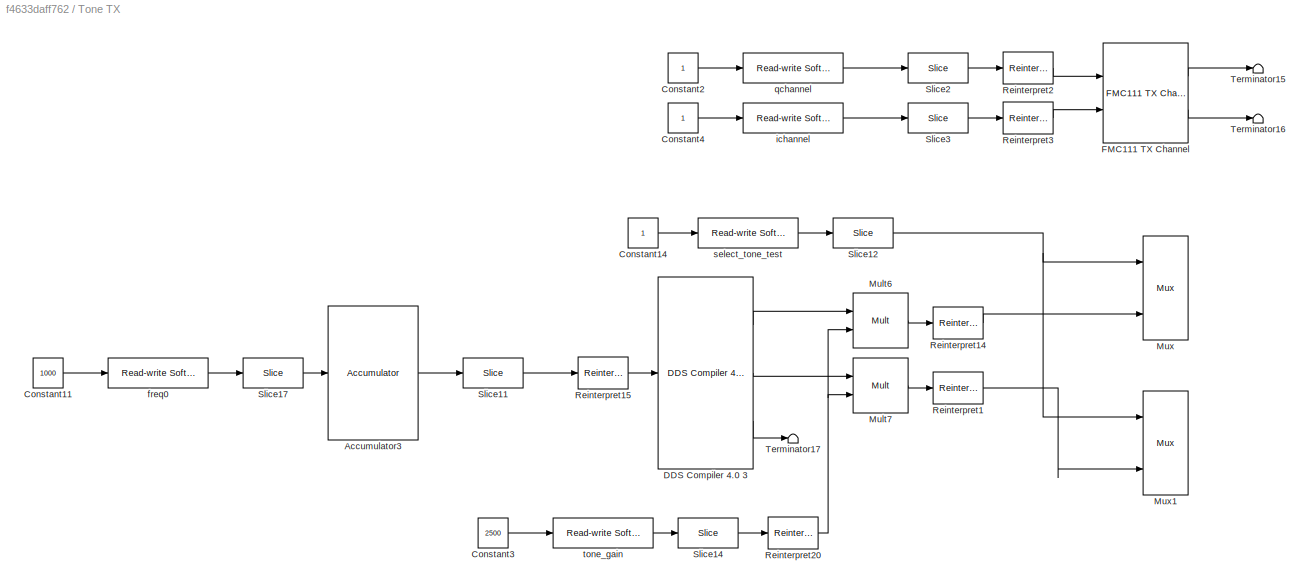
BLOCK [SubSystem] Tone TX
  FunctionWithSeparateData = off
  MaskHideContents = off
  MinAlgLoopOccurrences = off
  Opaque = off
  Ports = []
  PropExecContextOutsideSubsystem = off
  RTWSystemCode = Auto
  RequestExecContextInheritance = off
  VariantControl = Variant1
BLOCK [Reference] Tone TX/Accumulator3  REF=xbsIndex_r4/Accumulator
  Commented = on
  Ports = [1, 1]
  SourceBlock = xbsIndex_r4/Accumulator
  SourceType = Xilinx Accumulator Block
  block_type = accum
  dbl_ovrd = off
  en = off
  has_advanced_control = 0
  hasbypass = on
  implementation = Fabric
  infoedit = Adder or subtracter-based accumulator.   Output type and binary point position match the input.<br><br>Hardware notes: When "Reinitialize with input 'b' on reset" is selected, the accumulator is forced to run at the system rate even if the input 'b' is running at a slower rate.
  infoeditControl = reset for floating point data type must be asserted for a minimum of 2 cycles
  latency = 0
  lsb = -100
  msb = 100
  msb_inp = 100
  n_bits = 24
  operation = Add
  overflow = Wrap
  rst = off
  scale = 1
  sg_icon_stat = 90,134,1,1,white,blue,0,47915e64,right,,[ ],[ ]
  sg_mask_display = fprintf('','COMMENT: begin icon graphics');\npatch([0 90 90 0 0 ],[0 0 134 134 0 ],[0.77 0.82 0.91 ]);\nplot([0 90 90 0 0 ],[0 0 134 134 0 ]);\npatch([18.3 35.64 47.64 59.64 71.64 47.64 30.3 18.3 ],[80.32 80.32 92.32 80.32 92.32 92.32 92.32 80.32 ],[1 1 1 ]);\npatch([30.3 47.64 35.64 18.3 30.3 ],[68.32 68.32 80.32 80.32 68.32 ],[0.931 0.946 0.973 ]);\npatch([18.3 35.64 47.64 30.3 18.3 ],[56.32 56.32 68...<+369ch>
  sggui_pos = 876,51,451,651
  use_behavioral_HDL = on
  xl_area = [0,0,0,0,0,0,0]
  xl_use_area = off
BLOCK [Constant] Tone TX/Constant11
  Commented = on
  Value = 1000
BLOCK [Constant] Tone TX/Constant14
  Commented = on
BLOCK [Constant] Tone TX/Constant2
BLOCK [Constant] Tone TX/Constant3
  Commented = on
  Value = 2500
BLOCK [Constant] Tone TX/Constant4
BLOCK [Reference] Tone TX/DDS Compiler 4.0 3  REF=xbsIndex_r4/DDS Compiler 4.0 
  Commented = on
  Ports = [1, 3]
  SourceBlock = xbsIndex_r4/DDS Compiler 4.0
  SourceType = Xilinx DDS Compiler 4.0 Block
  amplitude_mode = Full_Range
  block_type = dds_compiler_v4_0
  channel_pin = off
  channels = 1
  clock_enable = off
  dds_clock_rate = 100
  dsp48_use = Minimal
  dsptool_ready = true
  explicit_period = off
  frequency_resolution = 0.4
  gui_behaviour = Sysgen
  has_advanced_control = 0
  has_phase_out = on
  ip_name = DDS Compiler
  ip_version = 4.0
  ipcore_fpga_part = xlipgetpartsetting(gcb, {'virtex4', 'xc4vsx35', '-10', 'ff668'})
  ipcore_usecache = true
  ipcore_useipmodelcache = true
  ipcore_verbose = false
  ipcore_xco_need_fpga_part = true
  latency = 6
  latency_configuration = Auto
  memory_type = Distributed_ROM
  negative_cosine = off
  negative_sine = off
  noise_shaping = None
  optimization_goal = Auto
  output_frequency1 = 0
  output_frequency10 = 0
  output_frequency11 = 0
  output_frequency12 = 0
  output_frequency13 = 0
  output_frequency14 = 0
  output_frequency15 = 0
  output_frequency16 = 0
  output_frequency2 = 0
  output_frequency3 = 0
  output_frequency4 = 0
  output_frequency5 = 0
  output_frequency6 = 0
  output_frequency7 = 0
  output_frequency8 = 0
  output_frequency9 = 0
  output_selection = Sine_and_Cosine
  output_width = 16
  parameter_entry = Hardware_Parameters
  partspresent = SIN_COS_LUT_only
  period = 1
  phase_increment = Fixed
  phase_offset = None
  phase_offset_angles1 = 0
  phase_offset_angles10 = 0
  phase_offset_angles11 = 0
  phase_offset_angles12 = 0
  phase_offset_angles13 = 0
  phase_offset_angles14 = 0
  phase_offset_angles15 = 0
  phase_offset_angles16 = 0
  phase_offset_angles2 = 0
  phase_offset_angles3 = 0
  phase_offset_angles4 = 0
  phase_offset_angles5 = 0
  phase_offset_angles6 = 0
  phase_offset_angles7 = 0
  phase_offset_angles8 = 0
  phase_offset_angles9 = 0
  phase_width = 16
  pinc1 = '0'
  pinc10 = '0'
  pinc11 = '0'
  pinc12 = '0'
  pinc13 = '0'
  pinc14 = '0'
  pinc15 = '0'
  pinc16 = '0'
  pinc2 = '0'
  pinc3 = '0'
  pinc4 = '0'
  pinc5 = '0'
  pinc6 = '0'
  pinc7 = '0'
  pinc8 = '0'
  pinc9 = '0'
  poff1 = '0'
  poff10 = '0'
  poff11 = '0'
  poff12 = '0'
  poff13 = '0'
  poff14 = '0'
  poff15 = '0'
  poff16 = '0'
  poff2 = '0'
  poff3 = '0'
  poff4 = '0'
  poff5 = '0'
  poff6 = '0'
  poff7 = '0'
  poff8 = '0'
  poff9 = '0'
  por_mode = false
  port_translation_map = { 'ce' => 'en', 'sclr' => 'rst' }
  rdy = off
  rfd = off
  sclr_pin = off
  sg_icon_stat = 95,192,1,3,white,blue,0,6be80ec3,right,,[ ],[ ]
  sg_mask_display = fprintf('','COMMENT: begin icon graphics');\npatch([0 95 95 0 0 ],[0 0 192 192 0 ],[0.77 0.82 0.91 ]);\nplot([0 95 95 0 0 ],[0 0 192 192 0 ]);\npatch([18.075 36.86 49.86 62.86 75.86 49.86 31.075 18.075 ],[110.43 110.43 123.43 110.43 123.43 123.43 123.43 110.43 ],[1 1 1 ]);\npatch([31.075 49.86 36.86 18.075 31.075 ],[97.43 97.43 110.43 110.43 97.43 ],[0.931 0.946 0.973 ]);\npatch([18.075 36.86 49.86 31....<+492ch>
  sggui_pos = 796,22,501,656
  spurious_free_dynamic_range = 36
  wrapper_available = true
BLOCK [Reference] Tone TX/FMC111 TX Channel  REF=mbee4_library/FMC111 TX Channel
  Ports = [2, 2]
  SourceBlock = mbee4_library/FMC111 TX Channel
  SourceType = FMC111 TX Channel
  Tag = xps:fmc111_tx
  arith_type = Signed
  bin_pt = 0
  bitwidth = 16
  channel_number = 1
  sample_period = 1
  update = off
BLOCK [Reference] Tone TX/Mult6  REF=xbsIndex_r4/Mult
  Commented = on
  Ports = [2, 1]
  SourceBlock = xbsIndex_r4/Mult
  SourceType = Xilinx Multiplier Block
  arith_type = Signed  (2's comp)
  bin_pt = 15
  block_type = mult
  dbl_ovrd = off
  en = off
  has_advanced_control = 0
  infoedit = Hardware notes: To check for the optimum internal pipeline stages of the dedicated multiplier you must select 'Test for optimum pipelining'.<br><br>Optimization Goal: For implementation into device fabric (LUTs), the Speed or Area optimization will take effect only if it's supported by IP for the particular device family. Otherwise, the results will be identical regardless of the selection.
  latency = 3
  n_bits = 16
  opt = Speed
  optimum_pipeline = off
  overflow = Saturate
  pipeline = on
  placement_style = Triangular
  precision = User Defined
  quantization = Round  (unbiased: +/- Inf)
  sg_icon_stat = 55,55,2,1,white,blue,0,7028354c,right,,[ ],[ ]
  sg_mask_display = fprintf('','COMMENT: begin icon graphics');\npatch([0 55 55 0 0 ],[0 0 55 55 0 ],[0.77 0.82 0.91 ]);\nplot([0 55 55 0 0 ],[0 0 55 55 0 ]);\npatch([11.425 21.54 28.54 35.54 42.54 28.54 18.425 11.425 ],[34.77 34.77 41.77 34.77 41.77 41.77 41.77 34.77 ],[1 1 1 ]);\npatch([18.425 28.54 21.54 11.425 18.425 ],[27.77 27.77 34.77 34.77 27.77 ],[0.931 0.946 0.973 ]);\npatch([11.425 21.54 28.54 18.425 11.425 ],[...<+522ch>
  sggui_pos = 885,41,451,669
  use_behavioral_HDL = off
  use_embedded = on
  use_rpm = on
  xl_area = [0,0,0,0,0,0,0]
  xl_use_area = off
BLOCK [Reference] Tone TX/Mult7  REF=xbsIndex_r4/Mult
  Commented = on
  Ports = [2, 1]
  SourceBlock = xbsIndex_r4/Mult
  SourceType = Xilinx Multiplier Block
  arith_type = Signed  (2's comp)
  bin_pt = 15
  block_type = mult
  dbl_ovrd = off
  en = off
  has_advanced_control = 0
  infoedit = Hardware notes: To check for the optimum internal pipeline stages of the dedicated multiplier you must select 'Test for optimum pipelining'.<br><br>Optimization Goal: For implementation into device fabric (LUTs), the Speed or Area optimization will take effect only if it's supported by IP for the particular device family. Otherwise, the results will be identical regardless of the selection.
  latency = 3
  n_bits = 16
  opt = Speed
  optimum_pipeline = off
  overflow = Saturate
  pipeline = on
  placement_style = Triangular
  precision = User Defined
  quantization = Round  (unbiased: +/- Inf)
  sg_icon_stat = 55,55,2,1,white,blue,0,7028354c,right,,[ ],[ ]
  sg_mask_display = fprintf('','COMMENT: begin icon graphics');\npatch([0 55 55 0 0 ],[0 0 55 55 0 ],[0.77 0.82 0.91 ]);\nplot([0 55 55 0 0 ],[0 0 55 55 0 ]);\npatch([11.425 21.54 28.54 35.54 42.54 28.54 18.425 11.425 ],[34.77 34.77 41.77 34.77 41.77 41.77 41.77 34.77 ],[1 1 1 ]);\npatch([18.425 28.54 21.54 11.425 18.425 ],[27.77 27.77 34.77 34.77 27.77 ],[0.931 0.946 0.973 ]);\npatch([11.425 21.54 28.54 18.425 11.425 ],[...<+522ch>
  sggui_pos = 1015,83,451,669
  use_behavioral_HDL = off
  use_embedded = on
  use_rpm = on
  xl_area = [0,0,0,0,0,0,0]
  xl_use_area = off
BLOCK [Reference] Tone TX/Mux  REF=xbsIndex_r4/Mux
  Commented = on
  Ports = [3, 1]
  SourceBlock = xbsIndex_r4/Mux
  SourceType = Xilinx Bus Multiplexer Block
  arith_type = Unsigned
  bin_pt = 14
  block_type = mux
  dbl_ovrd = off
  en = off
  has_advanced_control = 0
  inputs = 2
  latency = 0
  n_bits = 16
  overflow = Wrap
  precision = Full
  quantization = Truncate
  sg_icon_stat = 45,104,3,1,white,blue,3,eb98d690,right,,[ ],[ ]
  sggui_pos = 11,22,369,356
  xl_area = [0,0,0,0,0,0,0]
  xl_use_area = off
BLOCK [Reference] Tone TX/Mux1  REF=xbsIndex_r4/Mux
  Commented = on
  Ports = [3, 1]
  SourceBlock = xbsIndex_r4/Mux
  SourceType = Xilinx Bus Multiplexer Block
  arith_type = Unsigned
  bin_pt = 14
  block_type = mux
  dbl_ovrd = off
  en = off
  has_advanced_control = 0
  inputs = 2
  latency = 0
  n_bits = 16
  overflow = Wrap
  precision = Full
  quantization = Truncate
  sg_icon_stat = 45,104,3,1,white,blue,3,eb98d690,right,,[ ],[ ]
  sggui_pos = 447,28,369,356
  xl_area = [0,0,0,0,0,0,0]
  xl_use_area = off
BLOCK [Reference] Tone TX/Reinterpret1  REF=xbsIndex_r4/Reinterpret
  Commented = on
  Ports = [1, 1]
  SourceBlock = xbsIndex_r4/Reinterpret
  SourceType = Xilinx Type Reinterpreter Block
  arith_type = Signed  (2's comp)
  bin_pt = 0
  block_type = reinterpret
  force_arith_type = on
  force_bin_pt = on
  has_advanced_control = 0
  sg_icon_stat = 50,32,1,1,white,blue,0,6b04d0b0,right,,[ ],[ ]
  sggui_pos = 400,302,400,381
BLOCK [Reference] Tone TX/Reinterpret14  REF=xbsIndex_r4/Reinterpret
  Commented = on
  Ports = [1, 1]
  SourceBlock = xbsIndex_r4/Reinterpret
  SourceType = Xilinx Type Reinterpreter Block
  arith_type = Signed  (2's comp)
  bin_pt = 0
  block_type = reinterpret
  force_arith_type = on
  force_bin_pt = on
  has_advanced_control = 0
  sg_icon_stat = 50,32,1,1,white,blue,0,6b04d0b0,right,,[ ],[ ]
  sggui_pos = 400,302,400,381
BLOCK [Reference] Tone TX/Reinterpret15  REF=xbsIndex_r4/Reinterpret
  Commented = on
  Ports = [1, 1]
  SourceBlock = xbsIndex_r4/Reinterpret
  SourceType = Xilinx Type Reinterpreter Block
  arith_type = Unsigned
  bin_pt = 16
  block_type = reinterpret
  force_arith_type = off
  force_bin_pt = on
  has_advanced_control = 0
  sg_icon_stat = 50,32,1,1,white,blue,0,6b04d0b0,right,,[ ],[ ]
  sggui_pos = -1,-1,-1,-1
BLOCK [Reference] Tone TX/Reinterpret2  REF=xbsIndex_r4/Reinterpret
  Ports = [1, 1]
  SourceBlock = xbsIndex_r4/Reinterpret
  SourceType = Xilinx Type Reinterpreter Block
  arith_type = Signed  (2's comp)
  bin_pt = 0
  block_type = reinterpret
  force_arith_type = on
  force_bin_pt = on
  has_advanced_control = 0
  sg_icon_stat = 50,32,1,1,white,blue,0,6b04d0b0,right,,[ ],[ ]
  sggui_pos = 400,302,400,381
BLOCK [Reference] Tone TX/Reinterpret20  REF=xbsIndex_r4/Reinterpret
  Commented = on
  Ports = [1, 1]
  SourceBlock = xbsIndex_r4/Reinterpret
  SourceType = Xilinx Type Reinterpreter Block
  arith_type = Unsigned
  bin_pt = 11
  block_type = reinterpret
  force_arith_type = on
  force_bin_pt = on
  has_advanced_control = 0
  sg_icon_stat = 50,32,1,1,white,blue,0,6b04d0b0,right,,[ ],[ ]
  sggui_pos = 537,296,400,381
BLOCK [Reference] Tone TX/Reinterpret3  REF=xbsIndex_r4/Reinterpret
  Ports = [1, 1]
  SourceBlock = xbsIndex_r4/Reinterpret
  SourceType = Xilinx Type Reinterpreter Block
  arith_type = Signed  (2's comp)
  bin_pt = 0
  block_type = reinterpret
  force_arith_type = on
  force_bin_pt = on
  has_advanced_control = 0
  sg_icon_stat = 50,32,1,1,white,blue,0,6b04d0b0,right,,[ ],[ ]
  sggui_pos = 391,294,400,381
BLOCK [Reference] Tone TX/Slice11  REF=xbsIndex_r4/Slice
  Commented = on
  Ports = [1, 1]
  SourceBlock = xbsIndex_r4/Slice
  SourceType = Xilinx Bit Slice Extractor Block
  base0 = LSB of Input
  base1 = MSB of Input
  bit0 = 0
  bit1 = 0
  block_type = slice
  boolean_output = off
  dbl_ovrd = off
  has_advanced_control = 0
  mode = Upper Bit Location + Width
  nbits = 16
  sg_icon_stat = 60,30,1,1,white,blue,0,1fd851a7,right,,[ ],[ ]
  sggui_pos = 20,45,591,503
BLOCK [Reference] Tone TX/Slice12  REF=xbsIndex_r4/Slice
  Commented = on
  Ports = [1, 1]
  SourceBlock = xbsIndex_r4/Slice
  SourceType = Xilinx Bit Slice Extractor Block
  base0 = LSB of Input
  base1 = MSB of Input
  bit0 = 0
  bit1 = 0
  block_type = slice
  boolean_output = on
  dbl_ovrd = off
  has_advanced_control = 0
  mode = Lower Bit Location + Width
  nbits = 1
  sg_icon_stat = 60,30,1,1,white,blue,0,1fd851a7,right,,[ ],[ ]
  sggui_pos = 609,162,591,503
BLOCK [Reference] Tone TX/Slice14  REF=xbsIndex_r4/Slice
  Commented = on
  Ports = [1, 1]
  SourceBlock = xbsIndex_r4/Slice
  SourceType = Xilinx Bit Slice Extractor Block
  base0 = LSB of Input
  base1 = MSB of Input
  bit0 = 0
  bit1 = 0
  block_type = slice
  boolean_output = off
  dbl_ovrd = off
  has_advanced_control = 0
  mode = Lower Bit Location + Width
  nbits = 12
  sg_icon_stat = 60,30,1,1,white,blue,0,1fd851a7,right,,[ ],[ ]
  sggui_pos = 553,137,591,503
BLOCK [Reference] Tone TX/Slice17  REF=xbsIndex_r4/Slice
  Commented = on
  Ports = [1, 1]
  SourceBlock = xbsIndex_r4/Slice
  SourceType = Xilinx Bit Slice Extractor Block
  base0 = LSB of Input
  base1 = MSB of Input
  bit0 = 0
  bit1 = 0
  block_type = slice
  boolean_output = off
  dbl_ovrd = off
  has_advanced_control = 0
  mode = Lower Bit Location + Width
  nbits = 24
  sg_icon_stat = 60,30,1,1,white,blue,0,1fd851a7,right,,[ ],[ ]
  sggui_pos = 20,45,591,503
BLOCK [Reference] Tone TX/Slice2  REF=xbsIndex_r4/Slice
  Ports = [1, 1]
  SourceBlock = xbsIndex_r4/Slice
  SourceType = Xilinx Bit Slice Extractor Block
  base0 = LSB of Input
  base1 = MSB of Input
  bit0 = 0
  bit1 = 0
  block_type = slice
  boolean_output = off
  dbl_ovrd = off
  has_advanced_control = 0
  mode = Lower Bit Location + Width
  nbits = 16
  sg_icon_stat = 60,30,1,1,white,blue,0,1fd851a7,right,,[ ],[ ]
  sggui_pos = 2,29,591,503
BLOCK [Reference] Tone TX/Slice3  REF=xbsIndex_r4/Slice
  Ports = [1, 1]
  SourceBlock = xbsIndex_r4/Slice
  SourceType = Xilinx Bit Slice Extractor Block
  base0 = LSB of Input
  base1 = MSB of Input
  bit0 = 0
  bit1 = 0
  block_type = slice
  boolean_output = off
  dbl_ovrd = off
  has_advanced_control = 0
  mode = Lower Bit Location + Width
  nbits = 16
  sg_icon_stat = 60,30,1,1,white,blue,0,1fd851a7,right,,[ ],[ ]
  sggui_pos = 11,37,591,503
BLOCK [Terminator] Tone TX/Terminator15
BLOCK [Terminator] Tone TX/Terminator16
BLOCK [Terminator] Tone TX/Terminator17
  Commented = on
BLOCK [Reference] Tone TX/freq0  REF=xps_library/Read-write Software Register  (lib defined in mdl_00b5cec29cd0, mdl_02ab6ecaa3d1, +5 more)
  Commented = on
  Ports = [1, 1]
  SourceBlock = xps_library/Read-write Software Register
  SourceType = Read-write Software Register
  Tag = xps:sw_reg
  arith_type = Unsigned
  bin_pt = 0
  bitwidth = 32
  io_dir = From Processor
  sample_period = 1
  update = off
  use_strobe = off
BLOCK [Reference] Tone TX/ichannel  REF=xps_library/Read-write Software Register  (lib defined in mdl_00b5cec29cd0, mdl_02ab6ecaa3d1, +5 more)
  Ports = [1, 1]
  SourceBlock = xps_library/Read-write Software Register
  SourceType = Read-write Software Register
  Tag = xps:sw_reg
  arith_type = Unsigned
  bin_pt = 0
  bitwidth = 32
  io_dir = From Processor
  sample_period = 1
  update = off
  use_strobe = off
BLOCK [Reference] Tone TX/qchannel  REF=xps_library/Read-write Software Register  (lib defined in mdl_00b5cec29cd0, mdl_02ab6ecaa3d1, +5 more)
  Ports = [1, 1]
  SourceBlock = xps_library/Read-write Software Register
  SourceType = Read-write Software Register
  Tag = xps:sw_reg
  arith_type = Unsigned
  bin_pt = 0
  bitwidth = 32
  io_dir = From Processor
  sample_period = 1
  update = off
  use_strobe = off
BLOCK [Reference] Tone TX/select_tone_test  REF=xps_library/Read-write Software Register  (lib defined in mdl_00b5cec29cd0, mdl_02ab6ecaa3d1, +5 more)
  Commented = on
  Ports = [1, 1]
  SourceBlock = xps_library/Read-write Software Register
  SourceType = Read-write Software Register
  Tag = xps:sw_reg
  arith_type = Unsigned
  bin_pt = 0
  bitwidth = 32
  io_dir = From Processor
  sample_period = 1
  update = off
  use_strobe = off
BLOCK [Reference] Tone TX/tone_gain  REF=xps_library/Read-write Software Register  (lib defined in mdl_00b5cec29cd0, mdl_02ab6ecaa3d1, +5 more)
  Commented = on
  Ports = [1, 1]
  SourceBlock = xps_library/Read-write Software Register
  SourceType = Read-write Software Register
  Tag = xps:sw_reg
  arith_type = Unsigned
  bin_pt = 0
  bitwidth = 32
  io_dir = From Processor
  sample_period = 1
  update = off
  use_strobe = off
BLOCK [Reference] capture  REF=xps_library/Read-write Software Register  (lib defined in mdl_00b5cec29cd0, mdl_02ab6ecaa3d1, +5 more)
  Ports = [1, 1]
  SourceBlock = xps_library/Read-write Software Register
  SourceType = Read-write Software Register
  Tag = xps:sw_reg
  arith_type = Unsigned
  bin_pt = 0
  bitwidth = 32
  io_dir = From Processor
  sample_period = 1
  update = off
  use_strobe = off
BLOCK [Reference] channel_select  REF=xps_library/Read-write Software Register  (lib defined in mdl_00b5cec29cd0, mdl_02ab6ecaa3d1, +5 more)
  Ports = [1, 1]
  SourceBlock = xps_library/Read-write Software Register
  SourceType = Read-write Software Register
  Tag = xps:sw_reg
  arith_type = Unsigned
  bin_pt = 0
  bitwidth = 32
  io_dir = From Processor
  sample_period = 1
  update = off
  use_strobe = off
BLOCK [Constant] numofsamples
  Value = 2^19
BLOCK [Constant] sampfreq(kHz)
  Value = 5000
LINE 100kI:1 -> Terminator10:1
LINE 100kQ:1 -> Terminator11:1
LINE 10kI:1 -> Terminator4:1
LINE 10kQ:1 -> Terminator5:1
LINE 250MI:1 -> Terminator8:1
LINE 250MQ:1 -> Terminator9:1
LINE 5MI:1 -> Terminator6:1
LINE 5MQ:1 -> Terminator7:1
LINE 8 2^16 BRAM ARRAY/3bit:1 -> 8 2^16 BRAM ARRAY/Concat:2
LINE 8 2^16 BRAM ARRAY/Concat:1 -> 8 2^16 BRAM ARRAY/Mux:3
LINE 8 2^16 BRAM ARRAY/Constant10:1 -> 8 2^16 BRAM ARRAY/Concat:1
LINE 8 2^16 BRAM ARRAY/Constant11:1 -> 8 2^16 BRAM ARRAY/Mux:2
LINE 8 2^16 BRAM ARRAY/Constant1:1 -> 8 2^16 BRAM ARRAY/Relational2:2
LINE 8 2^16 BRAM ARRAY/Constant2:1 -> 8 2^16 BRAM ARRAY/Relational3:2
LINE 8 2^16 BRAM ARRAY/Constant3:1 -> 8 2^16 BRAM ARRAY/Relational4:2
LINE 8 2^16 BRAM ARRAY/Constant4:1 -> 8 2^16 BRAM ARRAY/Relational5:2
LINE 8 2^16 BRAM ARRAY/Constant5:1 -> 8 2^16 BRAM ARRAY/Relational6:2
LINE 8 2^16 BRAM ARRAY/Constant6:1 -> 8 2^16 BRAM ARRAY/Relational7:2
LINE 8 2^16 BRAM ARRAY/Constant7:1 -> 8 2^16 BRAM ARRAY/Relational8:2
LINE 8 2^16 BRAM ARRAY/Constant:1 -> 8 2^16 BRAM ARRAY/Relational1:2
LINE 8 2^16 BRAM ARRAY/I0:1 -> 8 2^16 BRAM ARRAY/Terminator10:1
LINE 8 2^16 BRAM ARRAY/I1:1 -> 8 2^16 BRAM ARRAY/Terminator9:1
LINE 8 2^16 BRAM ARRAY/I2:1 -> 8 2^16 BRAM ARRAY/Terminator15:1
LINE 8 2^16 BRAM ARRAY/I3:1 -> 8 2^16 BRAM ARRAY/Terminator13:1
LINE 8 2^16 BRAM ARRAY/I4:1 -> 8 2^16 BRAM ARRAY/Terminator17:1
LINE 8 2^16 BRAM ARRAY/I5:1 -> 8 2^16 BRAM ARRAY/Terminator16:1
LINE 8 2^16 BRAM ARRAY/I6:1 -> 8 2^16 BRAM ARRAY/Terminator19:1
LINE 8 2^16 BRAM ARRAY/I7:1 -> 8 2^16 BRAM ARRAY/Terminator18:1
NET 8 2^16 BRAM ARRAY/I:1 -> 8 2^16 BRAM ARRAY/I0:2, 8 2^16 BRAM ARRAY/I1:2, 8 2^16 BRAM ARRAY/I2:2, 8 2^16 BRAM ARRAY/I3:2, 8 2^16 BRAM ARRAY/I4:2, 8 2^16 BRAM ARRAY/I5:2, 8 2^16 BRAM ARRAY/I6:2, 8 2^16 BRAM ARRAY/I7:2, 8 2^16 BRAM ARRAY/Probe:1
NET 8 2^16 BRAM ARRAY/Mux:1 -> 8 2^16 BRAM ARRAY/Relational1:1, 8 2^16 BRAM ARRAY/Relational2:1, 8 2^16 BRAM ARRAY/Relational3:1, 8 2^16 BRAM ARRAY/Relational4:1, 8 2^16 BRAM ARRAY/Relational5:1, 8 2^16 BRAM ARRAY/Relational6:1, 8 2^16 BRAM ARRAY/Relational7:1, 8 2^16 BRAM ARRAY/Relational8:1
LINE 8 2^16 BRAM ARRAY/Q0:1 -> 8 2^16 BRAM ARRAY/Terminator12:1
LINE 8 2^16 BRAM ARRAY/Q1:1 -> 8 2^16 BRAM ARRAY/Terminator11:1
LINE 8 2^16 BRAM ARRAY/Q2:1 -> 8 2^16 BRAM ARRAY/Terminator2:1
LINE 8 2^16 BRAM ARRAY/Q3:1 -> 8 2^16 BRAM ARRAY/Terminator1:1
LINE 8 2^16 BRAM ARRAY/Q4:1 -> 8 2^16 BRAM ARRAY/Terminator4:1
LINE 8 2^16 BRAM ARRAY/Q5:1 -> 8 2^16 BRAM ARRAY/Terminator3:1
LINE 8 2^16 BRAM ARRAY/Q6:1 -> 8 2^16 BRAM ARRAY/Terminator6:1
LINE 8 2^16 BRAM ARRAY/Q7:1 -> 8 2^16 BRAM ARRAY/Terminator5:1
NET 8 2^16 BRAM ARRAY/Q:1 -> 8 2^16 BRAM ARRAY/Q0:2, 8 2^16 BRAM ARRAY/Q1:2, 8 2^16 BRAM ARRAY/Q2:2, 8 2^16 BRAM ARRAY/Q3:2, 8 2^16 BRAM ARRAY/Q4:2, 8 2^16 BRAM ARRAY/Q5:2, 8 2^16 BRAM ARRAY/Q6:2, 8 2^16 BRAM ARRAY/Q7:2
NET 8 2^16 BRAM ARRAY/Relational1:1 -> 8 2^16 BRAM ARRAY/I0:3, 8 2^16 BRAM ARRAY/Q0:3
NET 8 2^16 BRAM ARRAY/Relational2:1 -> 8 2^16 BRAM ARRAY/I1:3, 8 2^16 BRAM ARRAY/Q1:3
NET 8 2^16 BRAM ARRAY/Relational3:1 -> 8 2^16 BRAM ARRAY/I2:3, 8 2^16 BRAM ARRAY/Q2:3
NET 8 2^16 BRAM ARRAY/Relational4:1 -> 8 2^16 BRAM ARRAY/I3:3, 8 2^16 BRAM ARRAY/Q3:3
NET 8 2^16 BRAM ARRAY/Relational5:1 -> 8 2^16 BRAM ARRAY/I4:3, 8 2^16 BRAM ARRAY/Q4:3
NET 8 2^16 BRAM ARRAY/Relational6:1 -> 8 2^16 BRAM ARRAY/I5:3, 8 2^16 BRAM ARRAY/Q5:3
NET 8 2^16 BRAM ARRAY/Relational7:1 -> 8 2^16 BRAM ARRAY/I6:3, 8 2^16 BRAM ARRAY/Q6:3
NET 8 2^16 BRAM ARRAY/Relational8:1 -> 8 2^16 BRAM ARRAY/I7:3, 8 2^16 BRAM ARRAY/Q7:3
NET 8 2^16 BRAM ARRAY/addr:1 -> 8 2^16 BRAM ARRAY/3bit:1, 8 2^16 BRAM ARRAY/addrslice:1
NET 8 2^16 BRAM ARRAY/addrslice:1 -> 8 2^16 BRAM ARRAY/I0:1, 8 2^16 BRAM ARRAY/I1:1, 8 2^16 BRAM ARRAY/I2:1, 8 2^16 BRAM ARRAY/I3:1, 8 2^16 BRAM ARRAY/I4:1, 8 2^16 BRAM ARRAY/I5:1, 8 2^16 BRAM ARRAY/I6:1, 8 2^16 BRAM ARRAY/I7:1, 8 2^16 BRAM ARRAY/Q0:1, 8 2^16 BRAM ARRAY/Q1:1, 8 2^16 BRAM ARRAY/Q2:1, 8 2^16 BRAM ARRAY/Q3:1, 8 2^16 BRAM ARRAY/Q4:1, 8 2^16 BRAM ARRAY/Q5:1, 8 2^16 BRAM ARRAY/Q6:1, 8 2^16 BRAM ARRAY/Q7:1
LINE 8 2^16 BRAM ARRAY/we:1 -> 8 2^16 BRAM ARRAY/Mux:1
NET Concat5:1 -> 100kQ:2, 10kQ:2, 250MQ:2, 5MQ:2
NET Concat6:1 -> 100kI:2, 10kI:2, 250MI:2, 5MI:2
NET Constant15:1 -> FMC111 RX Channel1:3, FMC111 RX Channel1:4
NET Constant1:1 -> FMC111 RX Channel1:1, FMC111 RX Channel1:2
LINE Constant2:1 -> channel_select:1
NET Constant3:1 -> FMC111 RX Channel2:1, FMC111 RX Channel2:2, FMC111 RX Channel2:3, FMC111 RX Channel2:4
NET Constant:1 -> Concat5:2, Concat6:2
LINE Count up 100K/Constant8:1 -> Count up 100K/Register:1
LINE Count up 100K/Constant9:1 -> Count up 100K/Relational:2
LINE Count up 100K/Down Sample:1 -> Count up 100K/Rising Edge:1
NET Count up 100K/Register:1 -> Count up 100K/Write Count:2, Count up 100K/we:1
NET Count up 100K/Relational:1 -> Count up 100K/Register:2, Count up 100K/Write Count:1
NET Count up 100K/Rising Edge/In:1 -> Count up 100K/Rising Edge/Logical:1, Count up 100K/Rising Edge/Register:1
LINE Count up 100K/Rising Edge/Inverter:1 -> Count up 100K/Rising Edge/Logical:2
LINE Count up 100K/Rising Edge/Logical:1 -> Count up 100K/Rising Edge/Out:1
LINE Count up 100K/Rising Edge/Register:1 -> Count up 100K/Rising Edge/Inverter:1
LINE Count up 100K/Rising Edge:1 -> Count up 100K/Register:3
LINE Count up 100K/Slice1:1 -> Count up 100K/Down Sample:1
NET Count up 100K/Write Count:1 -> Count up 100K/Relational:1, Count up 100K/addr:1
LINE Count up 100K/start:1 -> Count up 100K/Slice1:1
NET Count up 100K:1 -> 100kI:1, 100kQ:1
NET Count up 100K:2 -> 100kI:3, 100kQ:3
LINE Count up 10K/Constant8:1 -> Count up 10K/Register:1
LINE Count up 10K/Constant9:1 -> Count up 10K/Relational:2
LINE Count up 10K/Down Sample:1 -> Count up 10K/Rising Edge:1
NET Count up 10K/Register:1 -> Count up 10K/Write Count:2, Count up 10K/we:1
NET Count up 10K/Relational:1 -> Count up 10K/Register:2, Count up 10K/Write Count:1
NET Count up 10K/Rising Edge/In:1 -> Count up 10K/Rising Edge/Logical:1, Count up 10K/Rising Edge/Register:1
LINE Count up 10K/Rising Edge/Inverter:1 -> Count up 10K/Rising Edge/Logical:2
LINE Count up 10K/Rising Edge/Logical:1 -> Count up 10K/Rising Edge/Out:1
LINE Count up 10K/Rising Edge/Register:1 -> Count up 10K/Rising Edge/Inverter:1
LINE Count up 10K/Rising Edge:1 -> Count up 10K/Register:3
LINE Count up 10K/Slice1:1 -> Count up 10K/Down Sample:1
NET Count up 10K/Write Count:1 -> Count up 10K/Relational:1, Count up 10K/addr:1
LINE Count up 10K/start:1 -> Count up 10K/Slice1:1
NET Count up 10K:1 -> 10kI:1, 10kQ:1
NET Count up 10K:2 -> 10kI:3, 10kQ:3
LINE Count up 250M/Constant8:1 -> Count up 250M/Register:1
LINE Count up 250M/Constant9:1 -> Count up 250M/Relational:2
NET Count up 250M/Register:1 -> Count up 250M/Write Count:2, Count up 250M/we:1
NET Count up 250M/Relational:1 -> Count up 250M/Register:2, Count up 250M/Write Count:1
NET Count up 250M/Rising Edge/In:1 -> Count up 250M/Rising Edge/Logical:1, Count up 250M/Rising Edge/Register:1
LINE Count up 250M/Rising Edge/Inverter:1 -> Count up 250M/Rising Edge/Logical:2
LINE Count up 250M/Rising Edge/Logical:1 -> Count up 250M/Rising Edge/Out:1
LINE Count up 250M/Rising Edge/Register:1 -> Count up 250M/Rising Edge/Inverter:1
LINE Count up 250M/Rising Edge:1 -> Count up 250M/Register:3
LINE Count up 250M/Slice1:1 -> Count up 250M/Rising Edge:1
NET Count up 250M/Write Count:1 -> Count up 250M/Relational:1, Count up 250M/addr:1
LINE Count up 250M/start:1 -> Count up 250M/Slice1:1
NET Count up 250M:1 -> 250MI:1, 250MQ:1
NET Count up 250M:2 -> 250MI:3, 250MQ:3
LINE Count up 5M/Constant8:1 -> Count up 5M/Register:1
LINE Count up 5M/Constant9:1 -> Count up 5M/Relational:2
LINE Count up 5M/Down Sample:1 -> Count up 5M/Rising Edge:1
NET Count up 5M/Register:1 -> Count up 5M/Write Count:2, Count up 5M/we:1
NET Count up 5M/Relational:1 -> Count up 5M/Register:2, Count up 5M/Write Count:1
NET Count up 5M/Rising Edge/In:1 -> Count up 5M/Rising Edge/Logical:1, Count up 5M/Rising Edge/Register:1
LINE Count up 5M/Rising Edge/Inverter:1 -> Count up 5M/Rising Edge/Logical:2
LINE Count up 5M/Rising Edge/Logical:1 -> Count up 5M/Rising Edge/Out:1
LINE Count up 5M/Rising Edge/Register:1 -> Count up 5M/Rising Edge/Inverter:1
LINE Count up 5M/Rising Edge:1 -> Count up 5M/Register:3
LINE Count up 5M/Slice1:1 -> Count up 5M/Down Sample:1
NET Count up 5M/Write Count:1 -> Count up 5M/Relational:1, Count up 5M/addr:1
LINE Count up 5M/start:1 -> Count up 5M/Slice1:1
NET Count up 5M:1 -> 5MI:1, 5MQ:1
NET Count up 5M:2 -> 5MI:3, 5MQ:3
LINE FMC111 RX Channel1:1 -> Mux:2
LINE FMC111 RX Channel1:2 -> Mux1:2
LINE FMC111 RX Channel1:3 -> Qor:1
LINE FMC111 RX Channel1:4 -> Ior:1
LINE FMC111 RX Channel2:1 -> Mux:3
LINE FMC111 RX Channel2:2 -> Mux1:3
LINE FMC111 RX Channel2:3 -> Terminator12:1
LINE FMC111 RX Channel2:4 -> Terminator13:1
LINE Ior:1 -> Terminator3:1
LINE Mux1:1 -> Reinterpret2:1
LINE Mux:1 -> Reinterpret4:1
NET Pulse Generator:1 -> Scope:1, To Workspace6:1, capture:1
LINE Qor:1 -> Terminator2:1
LINE Reinterpret2:1 -> Concat6:1
LINE Reinterpret4:1 -> Concat5:1
NET Slice:1 -> Mux1:1, Mux:1
LINE Tone TX/Accumulator3:1 -> Tone TX/Slice11:1
LINE Tone TX/Constant11:1 -> Tone TX/freq0:1
LINE Tone TX/Constant14:1 -> Tone TX/select_tone_test:1
LINE Tone TX/Constant2:1 -> Tone TX/qchannel:1
LINE Tone TX/Constant3:1 -> Tone TX/tone_gain:1
LINE Tone TX/Constant4:1 -> Tone TX/ichannel:1
LINE Tone TX/DDS Compiler 4.0 3:1 -> Tone TX/Mult6:1
LINE Tone TX/DDS Compiler 4.0 3:2 -> Tone TX/Mult7:1
LINE Tone TX/DDS Compiler 4.0 3:3 -> Tone TX/Terminator17:1
LINE Tone TX/FMC111 TX Channel:1 -> Tone TX/Terminator15:1
LINE Tone TX/FMC111 TX Channel:2 -> Tone TX/Terminator16:1
LINE Tone TX/Mult6:1 -> Tone TX/Reinterpret14:1
LINE Tone TX/Mult7:1 -> Tone TX/Reinterpret1:1
LINE Tone TX/Reinterpret14:1 -> Tone TX/Mux:3
LINE Tone TX/Reinterpret15:1 -> Tone TX/DDS Compiler 4.0 3:1
LINE Tone TX/Reinterpret1:1 -> Tone TX/Mux1:3
NET Tone TX/Reinterpret20:1 -> Tone TX/Mult6:2, Tone TX/Mult7:2
LINE Tone TX/Reinterpret2:1 -> Tone TX/FMC111 TX Channel:1
LINE Tone TX/Reinterpret3:1 -> Tone TX/FMC111 TX Channel:2
LINE Tone TX/Slice11:1 -> Tone TX/Reinterpret15:1
NET Tone TX/Slice12:1 -> Tone TX/Mux1:1, Tone TX/Mux:1
LINE Tone TX/Slice14:1 -> Tone TX/Reinterpret20:1
LINE Tone TX/Slice17:1 -> Tone TX/Accumulator3:1
LINE Tone TX/Slice2:1 -> Tone TX/Reinterpret2:1
LINE Tone TX/Slice3:1 -> Tone TX/Reinterpret3:1
LINE Tone TX/freq0:1 -> Tone TX/Slice17:1
LINE Tone TX/ichannel:1 -> Tone TX/Slice3:1
LINE Tone TX/qchannel:1 -> Tone TX/Slice2:1
LINE Tone TX/select_tone_test:1 -> Tone TX/Slice12:1
LINE Tone TX/tone_gain:1 -> Tone TX/Slice14:1
NET capture:1 -> Count up 100K:1, Count up 10K:1, Count up 250M:1, Count up 5M:1
LINE channel_select:1 -> Slice:1
LINE numofsamples:1 -> Terminator1:1
LINE sampfreq(kHz):1 -> Terminator:1
note: NET lines group one-source signal fan-out (src -> all destinations, sorted); 1:1 wires keep LINE
